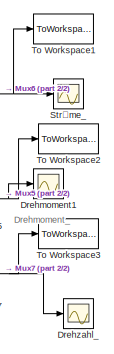
[diagram: root canvas - part 1/2, top right region]
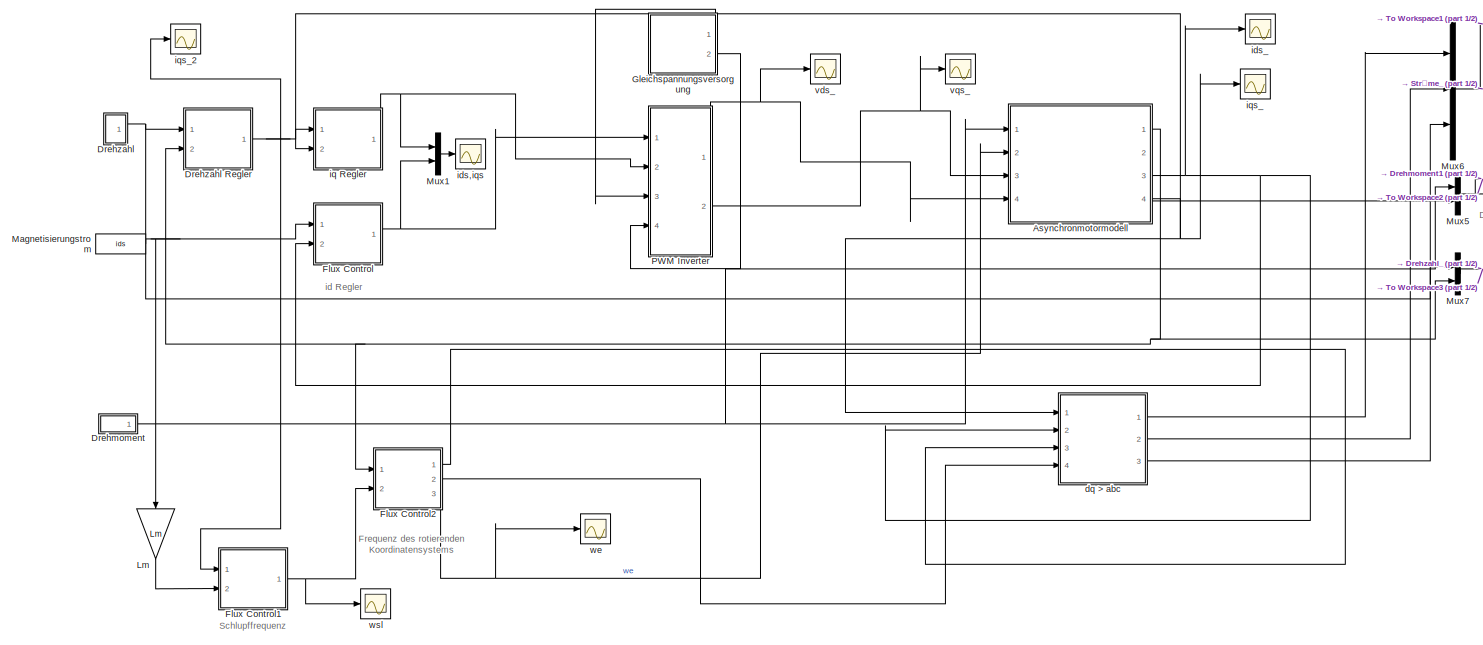
[diagram: root canvas - part 2/2, most of the canvas]
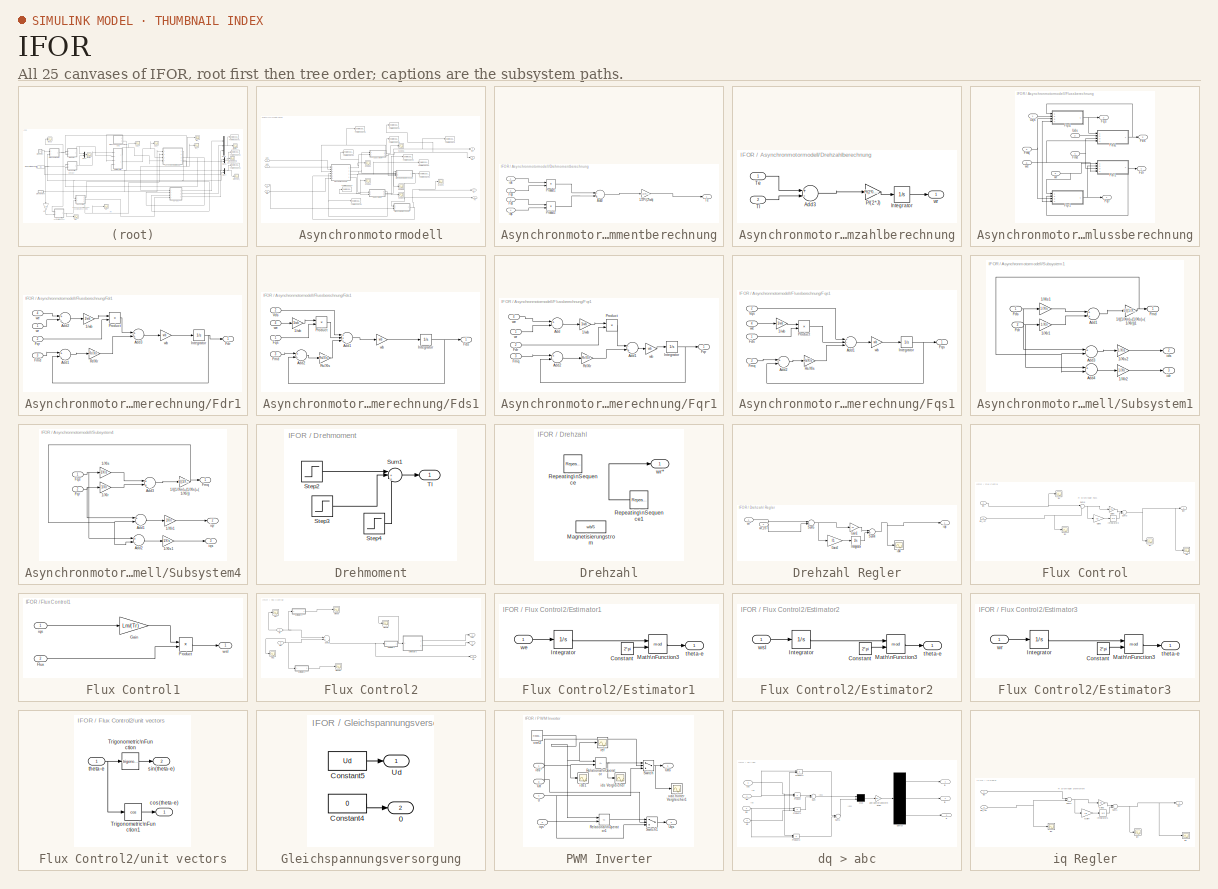
[diagram: thumbnail index - all 25 canvases of the model, root first then tree order]
MODEL IFOR
KIND model
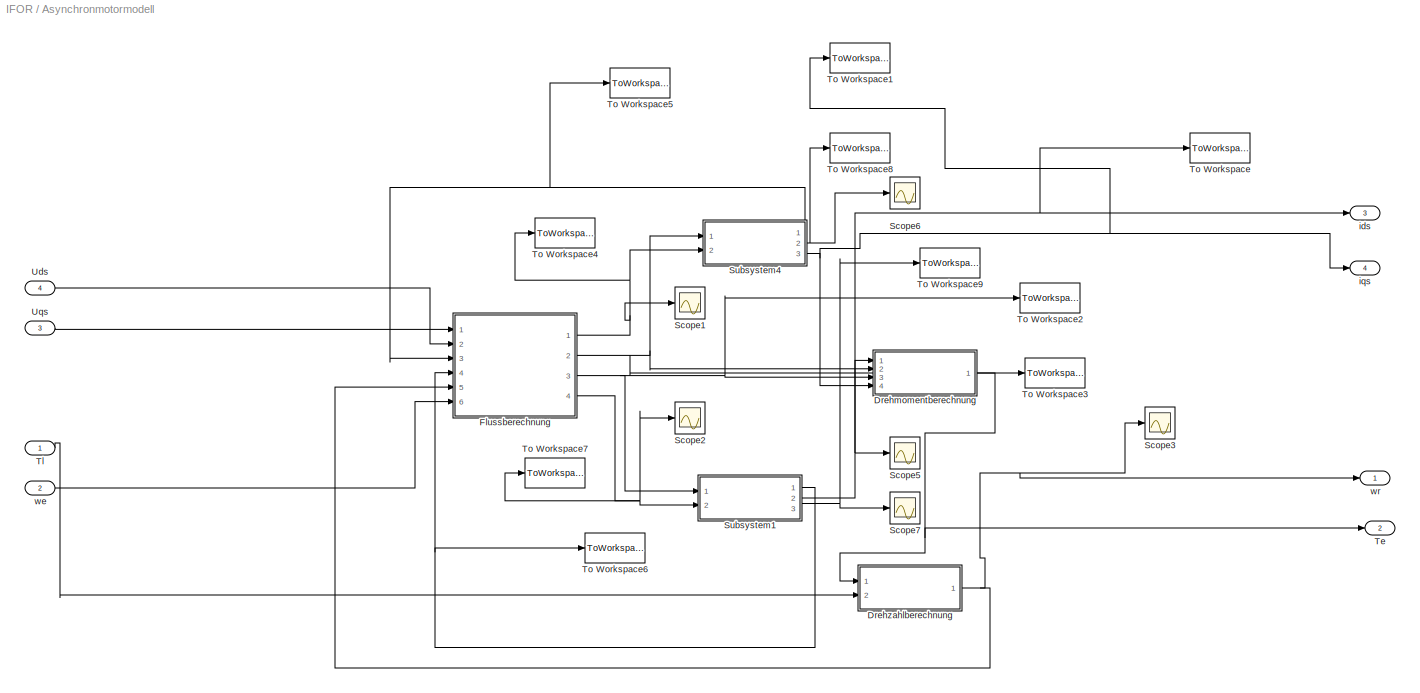
BLOCK [SubSystem] Asynchronmotormodell
  FunctionWithSeparateData = off
  MaskHideContents = off
  MinAlgLoopOccurrences = off
  Opaque = off
  Ports = [4, 4]
  PropExecContextOutsideSubsystem = off
  RTWSystemCode = Auto
  RequestExecContextInheritance = off
BLOCK [SubSystem] Asynchronmotormodell/Drehmomentberechnung
  FunctionWithSeparateData = off
  MaskHideContents = off
  MinAlgLoopOccurrences = off
  Opaque = off
  Ports = [4, 1]
  PropExecContextOutsideSubsystem = off
  RTWSystemCode = Auto
  RequestExecContextInheritance = off
BLOCK [Gain] Asynchronmotormodell/Drehmomentberechnung/1.5*P//(2*wb)
  Gain = 1.5*P/(2*wb)
  OutDataType = sfix(16)
  OutDataTypeMode = Inherit via internal rule
  OutDataTypeStr = Inherit: Inherit via internal rule
  OutScaling = 2^0
  ParamDataTypeStr = Inherit: Inherit via internal rule
  ParameterDataType = sfix(16)
  ParameterDataTypeMode = Inherit via internal rule
  ParameterScaling = 2^0
  SaturateOnIntegerOverflow = off
BLOCK [Sum] Asynchronmotormodell/Drehmomentberechnung/Add3
  InputSameDT = off
  Inputs = -+
  OutDataType = sfix(16)
  OutDataTypeMode = Inherit via internal rule
  OutDataTypeStr = Inherit: Inherit via internal rule
  OutScaling = 2^-10
  Ports = [2, 1]
  SaturateOnIntegerOverflow = off
BLOCK [Inport] Asynchronmotormodell/Drehmomentberechnung/Fds
  IconDisplay = Port number
  OutDataType = sfix(16)
  OutScaling = 2^0
  Port = 3
BLOCK [Inport] Asynchronmotormodell/Drehmomentberechnung/Fqs
  IconDisplay = Port number
  OutDataType = sfix(16)
  OutScaling = 2^0
  Port = 2
BLOCK [Product] Asynchronmotormodell/Drehmomentberechnung/Product1
  InputSameDT = off
  OutDataType = sfix(16)
  OutDataTypeMode = Inherit via internal rule
  OutDataTypeStr = Inherit: Inherit via internal rule
  OutScaling = 2^0
  Ports = [2, 1]
  SaturateOnIntegerOverflow = off
BLOCK [Product] Asynchronmotormodell/Drehmomentberechnung/Product2
  InputSameDT = off
  OutDataType = sfix(16)
  OutDataTypeMode = Inherit via internal rule
  OutDataTypeStr = Inherit: Inherit via internal rule
  OutScaling = 2^0
  Ports = [2, 1]
  SaturateOnIntegerOverflow = off
BLOCK [Outport] Asynchronmotormodell/Drehmomentberechnung/Te
  IconDisplay = Port number
  OutDataType = sfix(16)
  OutScaling = 2^0
BLOCK [Inport] Asynchronmotormodell/Drehmomentberechnung/ids
  IconDisplay = Port number
  OutDataType = sfix(16)
  OutScaling = 2^0
BLOCK [Inport] Asynchronmotormodell/Drehmomentberechnung/iqs
  IconDisplay = Port number
  OutDataType = sfix(16)
  OutScaling = 2^0
  Port = 4
BLOCK [SubSystem] Asynchronmotormodell/Drehzahlberechnung
  FunctionWithSeparateData = off
  MaskHideContents = off
  MinAlgLoopOccurrences = off
  Opaque = off
  Ports = [2, 1]
  PropExecContextOutsideSubsystem = off
  RTWSystemCode = Auto
  RequestExecContextInheritance = off
BLOCK [Sum] Asynchronmotormodell/Drehzahlberechnung/Add3
  InputSameDT = off
  Inputs = +-
  OutDataType = sfix(16)
  OutDataTypeMode = Inherit via internal rule
  OutDataTypeStr = Inherit: Inherit via internal rule
  OutScaling = 2^-10
  Ports = [2, 1]
  SaturateOnIntegerOverflow = off
BLOCK [Integrator] Asynchronmotormodell/Drehzahlberechnung/Integrator
  Ports = [1, 1]
BLOCK [Gain] Asynchronmotormodell/Drehzahlberechnung/P//(2*J)
  Gain = P/(2*0.006)
  OutDataType = sfix(16)
  OutDataTypeMode = Inherit via internal rule
  OutDataTypeStr = Inherit: Inherit via internal rule
  OutScaling = 2^0
  ParamDataTypeStr = Inherit: Inherit via internal rule
  ParameterDataType = sfix(16)
  ParameterDataTypeMode = Inherit via internal rule
  ParameterScaling = 2^0
  SaturateOnIntegerOverflow = off
BLOCK [Inport] Asynchronmotormodell/Drehzahlberechnung/Te
  IconDisplay = Port number
  OutDataType = sfix(16)
  OutScaling = 2^0
BLOCK [Inport] Asynchronmotormodell/Drehzahlberechnung/Tl
  IconDisplay = Port number
  OutDataType = sfix(16)
  OutScaling = 2^0
  Port = 2
BLOCK [Outport] Asynchronmotormodell/Drehzahlberechnung/wr
  IconDisplay = Port number
  OutDataType = sfix(16)
  OutScaling = 2^0
BLOCK [SubSystem] Asynchronmotormodell/Flussberechnung
  FunctionWithSeparateData = off
  MaskHideContents = off
  MinAlgLoopOccurrences = off
  Opaque = off
  Ports = [6, 4]
  PropExecContextOutsideSubsystem = off
  RTWSystemCode = Auto
  RequestExecContextInheritance = off
BLOCK [Outport] Asynchronmotormodell/Flussberechnung/Fdr
  IconDisplay = Port number
  OutDataType = sfix(16)
  OutScaling = 2^0
  Port = 4
BLOCK [SubSystem] Asynchronmotormodell/Flussberechnung/Fdr1
  FunctionWithSeparateData = off
  MaskHideContents = off
  MinAlgLoopOccurrences = off
  Opaque = off
  Ports = [4, 1]
  PropExecContextOutsideSubsystem = off
  RTWSystemCode = Auto
  RequestExecContextInheritance = off
BLOCK [Gain] Asynchronmotormodell/Flussberechnung/Fdr1/1//wb
  Gain = 1/wb
  OutDataType = sfix(16)
  OutDataTypeMode = Inherit via internal rule
  OutDataTypeStr = Inherit: Inherit via internal rule
  OutScaling = 2^0
  ParamDataTypeStr = Inherit: Inherit via internal rule
  ParameterDataType = sfix(16)
  ParameterDataTypeMode = Inherit via internal rule
  ParameterScaling = 2^0
  SaturateOnIntegerOverflow = off
BLOCK [Sum] Asynchronmotormodell/Flussberechnung/Fdr1/Add1
  InputSameDT = off
  Inputs = +-
  OutDataType = sfix(16)
  OutDataTypeMode = Inherit via internal rule
  OutDataTypeStr = Inherit: Inherit via internal rule
  OutScaling = 2^-10
  Ports = [2, 1]
  SaturateOnIntegerOverflow = off
BLOCK [Sum] Asynchronmotormodell/Flussberechnung/Fdr1/Add2
  InputSameDT = off
  Inputs = +-
  OutDataType = sfix(16)
  OutDataTypeMode = Inherit via internal rule
  OutDataTypeStr = Inherit: Inherit via internal rule
  OutScaling = 2^-10
  Ports = [2, 1]
  SaturateOnIntegerOverflow = off
BLOCK [Sum] Asynchronmotormodell/Flussberechnung/Fdr1/Add3
  InputSameDT = off
  OutDataType = sfix(16)
  OutDataTypeMode = Inherit via internal rule
  OutDataTypeStr = Inherit: Inherit via internal rule
  OutScaling = 2^-10
  Ports = [2, 1]
  SaturateOnIntegerOverflow = off
BLOCK [Outport] Asynchronmotormodell/Flussberechnung/Fdr1/Fdr
  IconDisplay = Port number
  OutDataType = sfix(16)
  OutScaling = 2^0
BLOCK [Inport] Asynchronmotormodell/Flussberechnung/Fdr1/Fmd
  IconDisplay = Port number
  OutDataType = sfix(16)
  OutScaling = 2^0
  Port = 3
BLOCK [Inport] Asynchronmotormodell/Flussberechnung/Fdr1/Fqr
  IconDisplay = Port number
  OutDataType = sfix(16)
  OutScaling = 2^0
  Port = 2
BLOCK [Integrator] Asynchronmotormodell/Flussberechnung/Fdr1/Integrator
  Ports = [1, 1]
BLOCK [Product] Asynchronmotormodell/Flussberechnung/Fdr1/Product
  InputSameDT = off
  OutDataType = sfix(16)
  OutDataTypeMode = Inherit via internal rule
  OutDataTypeStr = Inherit: Inherit via internal rule
  OutScaling = 2^0
  Ports = [2, 1]
  SaturateOnIntegerOverflow = off
BLOCK [Gain] Asynchronmotormodell/Flussberechnung/Fdr1/Rr//Xlr
  Gain = Rr/Xlr
  OutDataType = sfix(16)
  OutDataTypeMode = Inherit via internal rule
  OutDataTypeStr = Inherit: Inherit via internal rule
  OutScaling = 2^0
  ParamDataTypeStr = Inherit: Inherit via internal rule
  ParameterDataType = sfix(16)
  ParameterDataTypeMode = Inherit via internal rule
  ParameterScaling = 2^0
  SaturateOnIntegerOverflow = off
BLOCK [Gain] Asynchronmotormodell/Flussberechnung/Fdr1/wb
  Gain = wb
  OutDataType = sfix(16)
  OutDataTypeMode = Inherit via internal rule
  OutDataTypeStr = Inherit: Inherit via internal rule
  OutScaling = 2^0
  ParamDataTypeStr = Inherit: Inherit via internal rule
  ParameterDataType = sfix(16)
  ParameterDataTypeMode = Inherit via internal rule
  ParameterScaling = 2^0
  SaturateOnIntegerOverflow = off
BLOCK [Inport] Asynchronmotormodell/Flussberechnung/Fdr1/we
  IconDisplay = Port number
  OutDataType = sfix(16)
  OutScaling = 2^0
  Port = 4
BLOCK [Inport] Asynchronmotormodell/Flussberechnung/Fdr1/wr
  IconDisplay = Port number
  OutDataType = sfix(16)
  OutScaling = 2^0
BLOCK [Outport] Asynchronmotormodell/Flussberechnung/Fds
  IconDisplay = Port number
  OutDataType = sfix(16)
  OutScaling = 2^0
  Port = 3
BLOCK [SubSystem] Asynchronmotormodell/Flussberechnung/Fds1
  FunctionWithSeparateData = off
  MaskHideContents = off
  MinAlgLoopOccurrences = off
  Opaque = off
  Ports = [4, 1]
  PropExecContextOutsideSubsystem = off
  RTWSystemCode = Auto
  RequestExecContextInheritance = off
BLOCK [Gain] Asynchronmotormodell/Flussberechnung/Fds1/1//wb
  Gain = 1/wb
  OutDataType = sfix(16)
  OutDataTypeMode = Inherit via internal rule
  OutDataTypeStr = Inherit: Inherit via internal rule
  OutScaling = 2^0
  ParamDataTypeStr = Inherit: Inherit via internal rule
  ParameterDataType = sfix(16)
  ParameterDataTypeMode = Inherit via internal rule
  ParameterScaling = 2^0
  SaturateOnIntegerOverflow = off
BLOCK [Sum] Asynchronmotormodell/Flussberechnung/Fds1/Add1
  InputSameDT = off
  Inputs = +++
  OutDataType = sfix(16)
  OutDataTypeMode = Inherit via internal rule
  OutDataTypeStr = Inherit: Inherit via internal rule
  OutScaling = 2^-10
  Ports = [3, 1]
  SaturateOnIntegerOverflow = off
BLOCK [Sum] Asynchronmotormodell/Flussberechnung/Fds1/Add2
  InputSameDT = off
  Inputs = +-
  OutDataType = sfix(16)
  OutDataTypeMode = Inherit via internal rule
  OutDataTypeStr = Inherit: Inherit via internal rule
  OutScaling = 2^-10
  Ports = [2, 1]
  SaturateOnIntegerOverflow = off
BLOCK [Outport] Asynchronmotormodell/Flussberechnung/Fds1/Fds
  IconDisplay = Port number
  OutDataType = sfix(16)
  OutScaling = 2^0
BLOCK [Inport] Asynchronmotormodell/Flussberechnung/Fds1/Fmd
  IconDisplay = Port number
  OutDataType = sfix(16)
  OutScaling = 2^0
  Port = 3
BLOCK [Inport] Asynchronmotormodell/Flussberechnung/Fds1/Fqs
  IconDisplay = Port number
  OutDataType = sfix(16)
  OutScaling = 2^0
BLOCK [Integrator] Asynchronmotormodell/Flussberechnung/Fds1/Integrator
  Ports = [1, 1]
BLOCK [Product] Asynchronmotormodell/Flussberechnung/Fds1/Product
  InputSameDT = off
  OutDataType = sfix(16)
  OutDataTypeMode = Inherit via internal rule
  OutDataTypeStr = Inherit: Inherit via internal rule
  OutScaling = 2^0
  Ports = [2, 1]
  SaturateOnIntegerOverflow = off
BLOCK [Gain] Asynchronmotormodell/Flussberechnung/Fds1/Rs//Xls
  Gain = Rs/Xls
  OutDataType = sfix(16)
  OutDataTypeMode = Inherit via internal rule
  OutDataTypeStr = Inherit: Inherit via internal rule
  OutScaling = 2^0
  ParamDataTypeStr = Inherit: Inherit via internal rule
  ParameterDataType = sfix(16)
  ParameterDataTypeMode = Inherit via internal rule
  ParameterScaling = 2^0
  SaturateOnIntegerOverflow = off
BLOCK [Inport] Asynchronmotormodell/Flussberechnung/Fds1/Vds
  IconDisplay = Port number
  OutDataType = sfix(16)
  OutScaling = 2^0
  Port = 2
BLOCK [Gain] Asynchronmotormodell/Flussberechnung/Fds1/wb
  Gain = wb
  OutDataType = sfix(16)
  OutDataTypeMode = Inherit via internal rule
  OutDataTypeStr = Inherit: Inherit via internal rule
  OutScaling = 2^0
  ParamDataTypeStr = Inherit: Inherit via internal rule
  ParameterDataType = sfix(16)
  ParameterDataTypeMode = Inherit via internal rule
  ParameterScaling = 2^0
  SaturateOnIntegerOverflow = off
BLOCK [Inport] Asynchronmotormodell/Flussberechnung/Fds1/we
  IconDisplay = Port number
  OutDataType = sfix(16)
  OutScaling = 2^0
  Port = 4
BLOCK [Inport] Asynchronmotormodell/Flussberechnung/Fmd
  IconDisplay = Port number
  OutDataType = sfix(16)
  OutScaling = 2^0
  Port = 4
BLOCK [Inport] Asynchronmotormodell/Flussberechnung/Fmq
  IconDisplay = Port number
  OutDataType = sfix(16)
  OutScaling = 2^0
  Port = 3
BLOCK [Outport] Asynchronmotormodell/Flussberechnung/Fqr
  IconDisplay = Port number
  OutDataType = sfix(16)
  OutScaling = 2^0
BLOCK [SubSystem] Asynchronmotormodell/Flussberechnung/Fqr1
  FunctionWithSeparateData = off
  MaskHideContents = off
  MinAlgLoopOccurrences = off
  Opaque = off
  Ports = [4, 1]
  PropExecContextOutsideSubsystem = off
  RTWSystemCode = Auto
  RequestExecContextInheritance = off
BLOCK [Gain] Asynchronmotormodell/Flussberechnung/Fqr1/1//wb
  Gain = 1/wb
  OutDataType = sfix(16)
  OutDataTypeMode = Inherit via internal rule
  OutDataTypeStr = Inherit: Inherit via internal rule
  OutScaling = 2^0
  ParamDataTypeStr = Inherit: Inherit via internal rule
  ParameterDataType = sfix(16)
  ParameterDataTypeMode = Inherit via internal rule
  ParameterScaling = 2^0
  SaturateOnIntegerOverflow = off
BLOCK [Sum] Asynchronmotormodell/Flussberechnung/Fqr1/Add
  InputSameDT = off
  Inputs = +-
  OutDataType = sfix(16)
  OutDataTypeMode = Inherit via internal rule
  OutDataTypeStr = Inherit: Inherit via internal rule
  OutScaling = 2^-10
  Ports = [2, 1]
  SaturateOnIntegerOverflow = off
BLOCK [Sum] Asynchronmotormodell/Flussberechnung/Fqr1/Add1
  InputSameDT = off
  Inputs = -+
  OutDataType = sfix(16)
  OutDataTypeMode = Inherit via internal rule
  OutDataTypeStr = Inherit: Inherit via internal rule
  OutScaling = 2^-10
  Ports = [2, 1]
  SaturateOnIntegerOverflow = off
BLOCK [Sum] Asynchronmotormodell/Flussberechnung/Fqr1/Add2
  InputSameDT = off
  Inputs = +-
  OutDataType = sfix(16)
  OutDataTypeMode = Inherit via internal rule
  OutDataTypeStr = Inherit: Inherit via internal rule
  OutScaling = 2^-10
  Ports = [2, 1]
  SaturateOnIntegerOverflow = off
BLOCK [Inport] Asynchronmotormodell/Flussberechnung/Fqr1/Fdr
  IconDisplay = Port number
  OutDataType = sfix(16)
  OutScaling = 2^0
  Port = 2
BLOCK [Inport] Asynchronmotormodell/Flussberechnung/Fqr1/Fmq
  IconDisplay = Port number
  OutDataType = sfix(16)
  OutScaling = 2^0
  Port = 3
BLOCK [Outport] Asynchronmotormodell/Flussberechnung/Fqr1/Fqr
  IconDisplay = Port number
  OutDataType = sfix(16)
  OutScaling = 2^0
BLOCK [Integrator] Asynchronmotormodell/Flussberechnung/Fqr1/Integrator
  Ports = [1, 1]
BLOCK [Product] Asynchronmotormodell/Flussberechnung/Fqr1/Product
  InputSameDT = off
  OutDataType = sfix(16)
  OutDataTypeMode = Inherit via internal rule
  OutDataTypeStr = Inherit: Inherit via internal rule
  OutScaling = 2^0
  Ports = [2, 1]
  SaturateOnIntegerOverflow = off
BLOCK [Gain] Asynchronmotormodell/Flussberechnung/Fqr1/Rr//Xlr
  Gain = Rr/Xlr
  OutDataType = sfix(16)
  OutDataTypeMode = Inherit via internal rule
  OutDataTypeStr = Inherit: Inherit via internal rule
  OutScaling = 2^0
  ParamDataTypeStr = Inherit: Inherit via internal rule
  ParameterDataType = sfix(16)
  ParameterDataTypeMode = Inherit via internal rule
  ParameterScaling = 2^0
  SaturateOnIntegerOverflow = off
BLOCK [Gain] Asynchronmotormodell/Flussberechnung/Fqr1/wb
  Gain = wb
  OutDataType = sfix(16)
  OutDataTypeMode = Inherit via internal rule
  OutDataTypeStr = Inherit: Inherit via internal rule
  OutScaling = 2^0
  ParamDataTypeStr = Inherit: Inherit via internal rule
  ParameterDataType = sfix(16)
  ParameterDataTypeMode = Inherit via internal rule
  ParameterScaling = 2^0
  SaturateOnIntegerOverflow = off
BLOCK [Inport] Asynchronmotormodell/Flussberechnung/Fqr1/we
  IconDisplay = Port number
  OutDataType = sfix(16)
  OutScaling = 2^0
  Port = 4
BLOCK [Inport] Asynchronmotormodell/Flussberechnung/Fqr1/wr
  IconDisplay = Port number
  OutDataType = sfix(16)
  OutScaling = 2^0
BLOCK [Outport] Asynchronmotormodell/Flussberechnung/Fqs
  IconDisplay = Port number
  OutDataType = sfix(16)
  OutScaling = 2^0
  Port = 2
BLOCK [SubSystem] Asynchronmotormodell/Flussberechnung/Fqs1
  FunctionWithSeparateData = off
  MaskHideContents = off
  MinAlgLoopOccurrences = off
  Opaque = off
  Ports = [4, 1]
  PropExecContextOutsideSubsystem = off
  RTWSystemCode = Auto
  RequestExecContextInheritance = off
BLOCK [Gain] Asynchronmotormodell/Flussberechnung/Fqs1/1//wb
  Gain = 1/wb
  OutDataType = sfix(16)
  OutDataTypeMode = Inherit via internal rule
  OutDataTypeStr = Inherit: Inherit via internal rule
  OutScaling = 2^0
  ParamDataTypeStr = Inherit: Inherit via internal rule
  ParameterDataType = sfix(16)
  ParameterDataTypeMode = Inherit via internal rule
  ParameterScaling = 2^0
  SaturateOnIntegerOverflow = off
BLOCK [Sum] Asynchronmotormodell/Flussberechnung/Fqs1/Add1
  InputSameDT = off
  Inputs = +-+
  OutDataType = sfix(16)
  OutDataTypeMode = Inherit via internal rule
  OutDataTypeStr = Inherit: Inherit via internal rule
  OutScaling = 2^-10
  Ports = [3, 1]
  SaturateOnIntegerOverflow = off
BLOCK [Sum] Asynchronmotormodell/Flussberechnung/Fqs1/Add2
  InputSameDT = off
  Inputs = +-
  OutDataType = sfix(16)
  OutDataTypeMode = Inherit via internal rule
  OutDataTypeStr = Inherit: Inherit via internal rule
  OutScaling = 2^-10
  Ports = [2, 1]
  SaturateOnIntegerOverflow = off
BLOCK [Inport] Asynchronmotormodell/Flussberechnung/Fqs1/Fds
  IconDisplay = Port number
  OutDataType = sfix(16)
  OutScaling = 2^0
BLOCK [Inport] Asynchronmotormodell/Flussberechnung/Fqs1/Fmq
  IconDisplay = Port number
  OutDataType = sfix(16)
  OutScaling = 2^0
  Port = 3
BLOCK [Outport] Asynchronmotormodell/Flussberechnung/Fqs1/Fqs
  IconDisplay = Port number
  OutDataType = sfix(16)
  OutScaling = 2^0
BLOCK [Integrator] Asynchronmotormodell/Flussberechnung/Fqs1/Integrator
  Ports = [1, 1]
BLOCK [Product] Asynchronmotormodell/Flussberechnung/Fqs1/Product
  InputSameDT = off
  OutDataType = sfix(16)
  OutDataTypeMode = Inherit via internal rule
  OutDataTypeStr = Inherit: Inherit via internal rule
  OutScaling = 2^0
  Ports = [2, 1]
  SaturateOnIntegerOverflow = off
BLOCK [Gain] Asynchronmotormodell/Flussberechnung/Fqs1/Rs//Xls
  Gain = Rs/Xls
  OutDataType = sfix(16)
  OutDataTypeMode = Inherit via internal rule
  OutDataTypeStr = Inherit: Inherit via internal rule
  OutScaling = 2^0
  ParamDataTypeStr = Inherit: Inherit via internal rule
  ParameterDataType = sfix(16)
  ParameterDataTypeMode = Inherit via internal rule
  ParameterScaling = 2^0
  SaturateOnIntegerOverflow = off
BLOCK [Inport] Asynchronmotormodell/Flussberechnung/Fqs1/Vqs
  IconDisplay = Port number
  OutDataType = sfix(16)
  OutScaling = 2^0
  Port = 2
BLOCK [Gain] Asynchronmotormodell/Flussberechnung/Fqs1/wb
  Gain = wb
  OutDataType = sfix(16)
  OutDataTypeMode = Inherit via internal rule
  OutDataTypeStr = Inherit: Inherit via internal rule
  OutScaling = 2^0
  ParamDataTypeStr = Inherit: Inherit via internal rule
  ParameterDataType = sfix(16)
  ParameterDataTypeMode = Inherit via internal rule
  ParameterScaling = 2^0
  SaturateOnIntegerOverflow = off
BLOCK [Inport] Asynchronmotormodell/Flussberechnung/Fqs1/we
  IconDisplay = Port number
  OutDataType = sfix(16)
  OutScaling = 2^0
  Port = 4
BLOCK [Inport] Asynchronmotormodell/Flussberechnung/Uds
  IconDisplay = Port number
  OutDataType = sfix(16)
  OutScaling = 2^0
  Port = 2
BLOCK [Inport] Asynchronmotormodell/Flussberechnung/Uqs
  IconDisplay = Port number
  OutDataType = sfix(16)
  OutScaling = 2^0
BLOCK [Inport] Asynchronmotormodell/Flussberechnung/we
  IconDisplay = Port number
  OutDataType = sfix(16)
  OutScaling = 2^0
  Port = 6
BLOCK [Inport] Asynchronmotormodell/Flussberechnung/wr
  IconDisplay = Port number
  OutDataType = sfix(16)
  OutScaling = 2^0
  Port = 5
BLOCK [Scope] Asynchronmotormodell/Scope1
  DataFormat = StructureWithTime
  Floating = off
  NumInputPorts = 1
  Ports = [1]
  SampleTime = 0
  SaveName = ScopeData29
  TimeRange = 0.3
  YMax = -43.75
  YMin = -47.25
  ZoomMode = yonly
BLOCK [Scope] Asynchronmotormodell/Scope2
  DataFormat = StructureWithTime
  Floating = off
  NumInputPorts = 1
  Ports = [1]
  SampleTime = 0
  SaveName = ScopeData30
  TimeRange = 0.3
  YMax = 393.5
  YMin = 386.5
  ZoomMode = yonly
BLOCK [Scope] Asynchronmotormodell/Scope3
  DataFormat = StructureWithTime
  Floating = off
  NumInputPorts = 1
  Ports = [1]
  SampleTime = 0
  SaveName = Drehzahl1
  SaveToWorkspace = on
  TimeRange = 0.5
  YMax = 240
  YMin = 30
BLOCK [Scope] Asynchronmotormodell/Scope5
  DataFormat = StructureWithTime
  Floating = off
  NumInputPorts = 1
  Ports = [1]
  SampleTime = 0
  SaveName = ScopeData13
  TimeRange = 0.5
  YMax = 68.1
  YMin = 66.3
BLOCK [Scope] Asynchronmotormodell/Scope6
  DataFormat = StructureWithTime
  Floating = off
  NumInputPorts = 1
  Ports = [1]
  SampleTime = 0
  SaveName = ScopeData14
  TimeRange = 0.3
  YMax = 7.5
  YMin = -25
  ZoomMode = yonly
BLOCK [Scope] Asynchronmotormodell/Scope7
  DataFormat = StructureWithTime
  Floating = off
  NumInputPorts = 1
  Ports = [1]
  SampleTime = 0
  SaveName = ScopeData15
  TimeRange = 1
  YMax = 1
  YMin = -1
BLOCK [SubSystem] Asynchronmotormodell/Subsystem1
  FunctionWithSeparateData = off
  MaskHideContents = off
  MinAlgLoopOccurrences = off
  Opaque = off
  Ports = [2, 3]
  PropExecContextOutsideSubsystem = off
  RTWSystemCode = Auto
  RequestExecContextInheritance = off
BLOCK [Gain] Asynchronmotormodell/Subsystem1/1//((1//Xm)+(1//Xls)+(1//Xlr))1
  Gain = 1/((1/Xm)+(1/Xls)+(1/Xlr))
  OutDataType = sfix(16)
  OutDataTypeMode = Inherit via internal rule
  OutDataTypeStr = Inherit: Inherit via internal rule
  OutScaling = 2^0
  ParamDataTypeStr = Inherit: Inherit via internal rule
  ParameterDataType = sfix(16)
  ParameterDataTypeMode = Inherit via internal rule
  ParameterScaling = 2^0
  SaturateOnIntegerOverflow = off
BLOCK [Gain] Asynchronmotormodell/Subsystem1/1//Xlr1
  Gain = 1/Xlr
  OutDataType = sfix(16)
  OutDataTypeMode = Inherit via internal rule
  OutDataTypeStr = Inherit: Inherit via internal rule
  OutScaling = 2^0
  ParamDataTypeStr = Inherit: Inherit via internal rule
  ParameterDataType = sfix(16)
  ParameterDataTypeMode = Inherit via internal rule
  ParameterScaling = 2^0
  SaturateOnIntegerOverflow = off
BLOCK [Gain] Asynchronmotormodell/Subsystem1/1//Xlr2
  Gain = 1/Xlr
  OutDataType = sfix(16)
  OutDataTypeMode = Inherit via internal rule
  OutDataTypeStr = Inherit: Inherit via internal rule
  OutScaling = 2^0
  ParamDataTypeStr = Inherit: Inherit via internal rule
  ParameterDataType = sfix(16)
  ParameterDataTypeMode = Inherit via internal rule
  ParameterScaling = 2^0
  SaturateOnIntegerOverflow = off
BLOCK [Gain] Asynchronmotormodell/Subsystem1/1//Xls1
  Gain = 1/Xls
  OutDataType = sfix(16)
  OutDataTypeMode = Inherit via internal rule
  OutDataTypeStr = Inherit: Inherit via internal rule
  OutScaling = 2^0
  ParamDataTypeStr = Inherit: Inherit via internal rule
  ParameterDataType = sfix(16)
  ParameterDataTypeMode = Inherit via internal rule
  ParameterScaling = 2^0
  SaturateOnIntegerOverflow = off
BLOCK [Gain] Asynchronmotormodell/Subsystem1/1//Xls2
  Gain = 1/Xls
  OutDataType = sfix(16)
  OutDataTypeMode = Inherit via internal rule
  OutDataTypeStr = Inherit: Inherit via internal rule
  OutScaling = 2^0
  ParamDataTypeStr = Inherit: Inherit via internal rule
  ParameterDataType = sfix(16)
  ParameterDataTypeMode = Inherit via internal rule
  ParameterScaling = 2^0
  SaturateOnIntegerOverflow = off
BLOCK [Sum] Asynchronmotormodell/Subsystem1/Add1
  InputSameDT = off
  OutDataType = sfix(16)
  OutDataTypeMode = Inherit via internal rule
  OutDataTypeStr = Inherit: Inherit via internal rule
  OutScaling = 2^-10
  Ports = [2, 1]
  SaturateOnIntegerOverflow = off
BLOCK [Sum] Asynchronmotormodell/Subsystem1/Add3
  InputSameDT = off
  Inputs = +-
  OutDataType = sfix(16)
  OutDataTypeMode = Inherit via internal rule
  OutDataTypeStr = Inherit: Inherit via internal rule
  OutScaling = 2^-10
  Ports = [2, 1]
  SaturateOnIntegerOverflow = off
BLOCK [Sum] Asynchronmotormodell/Subsystem1/Add4
  InputSameDT = off
  Inputs = +-
  OutDataType = sfix(16)
  OutDataTypeMode = Inherit via internal rule
  OutDataTypeStr = Inherit: Inherit via internal rule
  OutScaling = 2^-10
  Ports = [2, 1]
  SaturateOnIntegerOverflow = off
BLOCK [Inport] Asynchronmotormodell/Subsystem1/Fdr
  IconDisplay = Port number
  OutDataType = sfix(16)
  OutScaling = 2^0
  Port = 2
BLOCK [Inport] Asynchronmotormodell/Subsystem1/Fds
  IconDisplay = Port number
  OutDataType = sfix(16)
  OutScaling = 2^0
BLOCK [Outport] Asynchronmotormodell/Subsystem1/Fmd
  IconDisplay = Port number
  OutDataType = sfix(16)
  OutScaling = 2^0
BLOCK [Outport] Asynchronmotormodell/Subsystem1/idr
  IconDisplay = Port number
  OutDataType = sfix(16)
  OutScaling = 2^0
  Port = 3
BLOCK [Outport] Asynchronmotormodell/Subsystem1/ids
  IconDisplay = Port number
  OutDataType = sfix(16)
  OutScaling = 2^0
  Port = 2
BLOCK [SubSystem] Asynchronmotormodell/Subsystem4
  FunctionWithSeparateData = off
  MaskHideContents = off
  MinAlgLoopOccurrences = off
  Opaque = off
  Ports = [2, 3]
  PropExecContextOutsideSubsystem = off
  RTWSystemCode = Auto
  RequestExecContextInheritance = off
BLOCK [Gain] Asynchronmotormodell/Subsystem4/1//((1//Xm)+(1//Xls)+(1//Xlr))
  Gain = 1/((1/Xm)+(1/Xls)+(1/Xlr))
  OutDataType = sfix(16)
  OutDataTypeMode = Inherit via internal rule
  OutDataTypeStr = Inherit: Inherit via internal rule
  OutScaling = 2^0
  ParamDataTypeStr = Inherit: Inherit via internal rule
  ParameterDataType = sfix(16)
  ParameterDataTypeMode = Inherit via internal rule
  ParameterScaling = 2^0
  SaturateOnIntegerOverflow = off
BLOCK [Gain] Asynchronmotormodell/Subsystem4/1//Xlr
  Gain = 1/Xlr
  OutDataType = sfix(16)
  OutDataTypeMode = Inherit via internal rule
  OutDataTypeStr = Inherit: Inherit via internal rule
  OutScaling = 2^0
  ParamDataTypeStr = Inherit: Inherit via internal rule
  ParameterDataType = sfix(16)
  ParameterDataTypeMode = Inherit via internal rule
  ParameterScaling = 2^0
  SaturateOnIntegerOverflow = off
BLOCK [Gain] Asynchronmotormodell/Subsystem4/1//Xlr1
  Gain = 1/Xlr
  OutDataType = sfix(16)
  OutDataTypeMode = Inherit via internal rule
  OutDataTypeStr = Inherit: Inherit via internal rule
  OutScaling = 2^0
  ParamDataTypeStr = Inherit: Inherit via internal rule
  ParameterDataType = sfix(16)
  ParameterDataTypeMode = Inherit via internal rule
  ParameterScaling = 2^0
  SaturateOnIntegerOverflow = off
BLOCK [Gain] Asynchronmotormodell/Subsystem4/1//Xls
  Gain = 1/Xls
  OutDataType = sfix(16)
  OutDataTypeMode = Inherit via internal rule
  OutDataTypeStr = Inherit: Inherit via internal rule
  OutScaling = 2^0
  ParamDataTypeStr = Inherit: Inherit via internal rule
  ParameterDataType = sfix(16)
  ParameterDataTypeMode = Inherit via internal rule
  ParameterScaling = 2^0
  SaturateOnIntegerOverflow = off
BLOCK [Gain] Asynchronmotormodell/Subsystem4/1//Xls1
  Gain = 1/Xls
  OutDataType = sfix(16)
  OutDataTypeMode = Inherit via internal rule
  OutDataTypeStr = Inherit: Inherit via internal rule
  OutScaling = 2^0
  ParamDataTypeStr = Inherit: Inherit via internal rule
  ParameterDataType = sfix(16)
  ParameterDataTypeMode = Inherit via internal rule
  ParameterScaling = 2^0
  SaturateOnIntegerOverflow = off
BLOCK [Sum] Asynchronmotormodell/Subsystem4/Add1
  InputSameDT = off
  Inputs = +-
  OutDataType = sfix(16)
  OutDataTypeMode = Inherit via internal rule
  OutDataTypeStr = Inherit: Inherit via internal rule
  OutScaling = 2^-10
  Ports = [2, 1]
  SaturateOnIntegerOverflow = off
BLOCK [Sum] Asynchronmotormodell/Subsystem4/Add2
  InputSameDT = off
  Inputs = +-
  OutDataType = sfix(16)
  OutDataTypeMode = Inherit via internal rule
  OutDataTypeStr = Inherit: Inherit via internal rule
  OutScaling = 2^-10
  Ports = [2, 1]
  SaturateOnIntegerOverflow = off
BLOCK [Sum] Asynchronmotormodell/Subsystem4/Add3
  InputSameDT = off
  OutDataType = sfix(16)
  OutDataTypeMode = Inherit via internal rule
  OutDataTypeStr = Inherit: Inherit via internal rule
  OutScaling = 2^-10
  Ports = [2, 1]
  SaturateOnIntegerOverflow = off
BLOCK [Outport] Asynchronmotormodell/Subsystem4/Fmq
  IconDisplay = Port number
  OutDataType = sfix(16)
  OutScaling = 2^0
BLOCK [Inport] Asynchronmotormodell/Subsystem4/Fqr
  IconDisplay = Port number
  OutDataType = sfix(16)
  OutScaling = 2^0
  Port = 2
BLOCK [Inport] Asynchronmotormodell/Subsystem4/Fqs
  IconDisplay = Port number
  OutDataType = sfix(16)
  OutScaling = 2^0
BLOCK [Outport] Asynchronmotormodell/Subsystem4/iqr
  IconDisplay = Port number
  OutDataType = sfix(16)
  OutScaling = 2^0
  Port = 2
BLOCK [Outport] Asynchronmotormodell/Subsystem4/iqs
  IconDisplay = Port number
  OutDataType = sfix(16)
  OutScaling = 2^0
  Port = 3
BLOCK [Outport] Asynchronmotormodell/Te
  IconDisplay = Port number
  OutDataType = sfix(16)
  OutScaling = 2^0
  Port = 2
BLOCK [Inport] Asynchronmotormodell/Tl
  IconDisplay = Port number
  OutDataType = sfix(16)
  OutScaling = 2^0
BLOCK [ToWorkspace] Asynchronmotormodell/To Workspace
  MaxDataPoints = inf
  SampleTime = -1
  SaveFormat = Structure
  VariableName = simout
BLOCK [ToWorkspace] Asynchronmotormodell/To Workspace1
  MaxDataPoints = inf
  SampleTime = -1
  SaveFormat = Structure
  VariableName = simout1
BLOCK [ToWorkspace] Asynchronmotormodell/To Workspace2
  MaxDataPoints = inf
  SampleTime = -1
  SaveFormat = Structure
  VariableName = simout2
BLOCK [ToWorkspace] Asynchronmotormodell/To Workspace3
  MaxDataPoints = inf
  SampleTime = -1
  SaveFormat = Structure
  VariableName = simout3
BLOCK [ToWorkspace] Asynchronmotormodell/To Workspace4
  MaxDataPoints = inf
  SampleTime = -1
  SaveFormat = Structure
  VariableName = simout4
BLOCK [ToWorkspace] Asynchronmotormodell/To Workspace5
  MaxDataPoints = inf
  SampleTime = -1
  SaveFormat = Structure
  VariableName = simout5
BLOCK [ToWorkspace] Asynchronmotormodell/To Workspace6
  MaxDataPoints = inf
  SampleTime = -1
  SaveFormat = Structure
  VariableName = simout6
BLOCK [ToWorkspace] Asynchronmotormodell/To Workspace7
  MaxDataPoints = inf
  SampleTime = -1
  SaveFormat = Structure
  VariableName = simout10
BLOCK [ToWorkspace] Asynchronmotormodell/To Workspace8
  MaxDataPoints = inf
  SampleTime = -1
  SaveFormat = Structure
  VariableName = simout11
BLOCK [ToWorkspace] Asynchronmotormodell/To Workspace9
  MaxDataPoints = inf
  SampleTime = -1
  SaveFormat = Structure
  VariableName = simout12
BLOCK [Inport] Asynchronmotormodell/Uds
  IconDisplay = Port number
  OutDataType = sfix(16)
  OutScaling = 2^0
  Port = 4
BLOCK [Inport] Asynchronmotormodell/Uqs
  IconDisplay = Port number
  OutDataType = sfix(16)
  OutScaling = 2^0
  Port = 3
BLOCK [Outport] Asynchronmotormodell/ids
  IconDisplay = Port number
  OutDataType = sfix(16)
  OutScaling = 2^0
  Port = 3
BLOCK [Outport] Asynchronmotormodell/iqs
  IconDisplay = Port number
  OutDataType = sfix(16)
  OutScaling = 2^0
  Port = 4
BLOCK [Inport] Asynchronmotormodell/we
  IconDisplay = Port number
  OutDataType = sfix(16)
  OutScaling = 2^0
  Port = 2
BLOCK [Outport] Asynchronmotormodell/wr
  IconDisplay = Port number
  OutDataType = sfix(16)
  OutScaling = 2^0
BLOCK [SubSystem] Drehmoment
  FunctionWithSeparateData = off
  MaskHideContents = off
  MinAlgLoopOccurrences = off
  Opaque = off
  Ports = [0, 1]
  PropExecContextOutsideSubsystem = off
  RTWSystemCode = Auto
  RequestExecContextInheritance = off
BLOCK [Step] Drehmoment/Step2
  After = 3
  SampleTime = 0
  Time = .2
BLOCK [Step] Drehmoment/Step3
  After = 0
  SampleTime = 0
  Time = 0.05
BLOCK [Step] Drehmoment/Step4
  After = 0
  SampleTime = 0
  Time = 30
BLOCK [Sum] Drehmoment/Sum1
  IconShape = round
  Inputs = |+++
  OutDataType = sfix(16)
  OutScaling = 2^0
  Ports = [3, 1]
BLOCK [Outport] Drehmoment/Tl
  IconDisplay = Port number
  OutDataType = sfix(16)
  OutScaling = 2^0
BLOCK [Scope] Drehmoment1
  DataFormat = Array
  Floating = off
  MaxDataPoints = 500000
  NumInputPorts = 1
  Ports = [1]
  SampleTime = 0
  TickLabels = on
  TimeRange = 0.001543443952852636
  YMax = 6
  YMin = -3
  ZoomMode = xonly
BLOCK [SubSystem] Drehzahl
  FunctionWithSeparateData = off
  MaskHideContents = off
  MinAlgLoopOccurrences = off
  Opaque = off
  Ports = [0, 1]
  PropExecContextOutsideSubsystem = off
  RTWSystemCode = Auto
  RequestExecContextInheritance = off
BLOCK [SubSystem] Drehzahl Regler
  FunctionWithSeparateData = off
  MaskHideContents = off
  MinAlgLoopOccurrences = off
  Opaque = off
  Ports = [2, 1]
  PropExecContextOutsideSubsystem = off
  RTWSystemCode = Auto
  RequestExecContextInheritance = off
BLOCK [Gain] Drehzahl Regler/Gain1
  Gain = P1
  OutDataType = sfix(16)
  OutDataTypeMode = Inherit via internal rule
  OutDataTypeStr = Inherit: Inherit via internal rule
  OutScaling = 2^0
  ParamDataTypeStr = Inherit: Inherit via internal rule
  ParameterDataType = sfix(16)
  ParameterDataTypeMode = Inherit via internal rule
  ParameterScaling = 2^0
  SaturateOnIntegerOverflow = off
BLOCK [Gain] Drehzahl Regler/Gain2
  Gain = I1
  OutDataType = sfix(16)
  OutDataTypeMode = Inherit via internal rule
  OutDataTypeStr = Inherit: Inherit via internal rule
  OutScaling = 2^0
  ParamDataTypeStr = Inherit: Inherit via internal rule
  ParameterDataType = sfix(16)
  ParameterDataTypeMode = Inherit via internal rule
  ParameterScaling = 2^0
  SaturateOnIntegerOverflow = off
BLOCK [Integrator] Drehzahl Regler/Integrator
  Ports = [1, 1]
BLOCK [Sum] Drehzahl Regler/Sum4
  IconShape = round
  InputSameDT = off
  Inputs = |++
  OutDataType = sfix(16)
  OutDataTypeMode = Inherit via internal rule
  OutDataTypeStr = Inherit: Inherit via internal rule
  OutScaling = 2^0
  Ports = [2, 1]
  SaturateOnIntegerOverflow = off
BLOCK [Sum] Drehzahl Regler/Sum5
  IconShape = round
  InputSameDT = off
  Inputs = |+-
  OutDataType = sfix(16)
  OutDataTypeMode = Inherit via internal rule
  OutDataTypeStr = Inherit: Inherit via internal rule
  OutScaling = 2^0
  Ports = [2, 1]
  SaturateOnIntegerOverflow = off
BLOCK [Scope] Drehzahl Regler/ia4
  DataFormat = Array
  Floating = off
  MaxDataPoints = 500000
  NumInputPorts = 1
  Ports = [1]
  SampleTime = 0
  SaveName = ScopeData5
  TickLabels = on
  YMax = 3100
  YMin = 2675
  ZoomMode = xonly
BLOCK [Outport] Drehzahl Regler/iqs
  IconDisplay = Port number
  InitialOutput = 0
  OutDataType = sfix(16)
  OutScaling = 2^0
BLOCK [Inport] Drehzahl Regler/wr*
  IconDisplay = Port number
  OutDataType = sfix(16)
  OutScaling = 2^0
BLOCK [Inport] Drehzahl Regler/wr_IST
  IconDisplay = Port number
  OutDataType = sfix(16)
  OutScaling = 2^0
  Port = 2
BLOCK [Constant] Drehzahl/Magnetisierungstrom
  OutDataType = sfix(16)
  OutScaling = 2^0
  Value = wb/5
BLOCK [Reference] Drehzahl/Repeating\nSequence  REF=simulink/Sources/Repeating\nSequence
  FunctionWithSeparateData = off
  Ports = [0, 1]
  RTWMemSecDataConstants = Inherit from model
  RTWMemSecDataInternal = Inherit from model
  RTWMemSecDataParameters = Inherit from model
  RTWMemSecFuncExecute = Inherit from model
  RTWMemSecFuncInitTerm = Inherit from model
  ShowPortLabels = FromPortIcon
  SourceBlock = simulink/Sources/Repeating\nSequence
  SourceType = Repeating table
  SystemSampleTime = -1
  rep_seq_t = [0 .15 .25 .4 .55 .6 10]
  rep_seq_y = [0 .5*wb .5*wb .2*wb .2*wb .4*wb .2*wb]
BLOCK [Reference] Drehzahl/Repeating\nSequence1  REF=simulink/Sources/Repeating\nSequence
  FunctionWithSeparateData = off
  Ports = [0, 1]
  RTWMemSecDataConstants = Inherit from model
  RTWMemSecDataInternal = Inherit from model
  RTWMemSecDataParameters = Inherit from model
  RTWMemSecFuncExecute = Inherit from model
  RTWMemSecFuncInitTerm = Inherit from model
  ShowPortLabels = FromPortIcon
  SourceBlock = simulink/Sources/Repeating\nSequence
  SourceType = Repeating table
  SystemSampleTime = -1
  rep_seq_t = [0 .15 .25 .4 .55 .6 10]
  rep_seq_y = [0 .5*wb .5*wb .5*wb .5*wb .2*wb .2*wb]
BLOCK [Outport] Drehzahl/wr*
  IconDisplay = Port number
  OutDataType = sfix(16)
  OutScaling = 2^0
BLOCK [Scope] Drehzahl_
  DataFormat = Array
  Floating = off
  MaxDataPoints = 500000
  NumInputPorts = 1
  Ports = [1]
  SampleTime = 0
  TickLabels = on
  TimeRange = 0.5
  YMax = 157.1
  YMin = 156.4
  ZoomMode = yonly
BLOCK [SubSystem] Flux Control
  FunctionWithSeparateData = off
  MaskHideContents = off
  MinAlgLoopOccurrences = off
  Opaque = off
  Ports = [2, 1]
  PropExecContextOutsideSubsystem = off
  RTWSystemCode = Auto
  RequestExecContextInheritance = off
BLOCK [Gain] Flux Control/Gain5
  Gain = P3
  OutDataType = sfix(16)
  OutDataTypeMode = Inherit via internal rule
  OutDataTypeStr = Inherit: Inherit via internal rule
  OutScaling = 2^0
  ParamDataTypeStr = Inherit: Inherit via internal rule
  ParameterDataType = sfix(16)
  ParameterDataTypeMode = Inherit via internal rule
  ParameterScaling = 2^0
  SaturateOnIntegerOverflow = off
BLOCK [Gain] Flux Control/Gain6
  Gain = I3
  OutDataType = sfix(16)
  OutDataTypeMode = Inherit via internal rule
  OutDataTypeStr = Inherit: Inherit via internal rule
  OutScaling = 2^0
  ParamDataTypeStr = Inherit: Inherit via internal rule
  ParameterDataType = sfix(16)
  ParameterDataTypeMode = Inherit via internal rule
  ParameterScaling = 2^0
  SaturateOnIntegerOverflow = off
BLOCK [Integrator] Flux Control/Integrator2
  Ports = [1, 1]
BLOCK [Sum] Flux Control/Sum3
  IconShape = round
  InputSameDT = off
  Inputs = |++
  OutDataType = sfix(16)
  OutDataTypeMode = Inherit via internal rule
  OutDataTypeStr = Inherit: Inherit via internal rule
  OutScaling = 2^0
  Ports = [2, 1]
  SaturateOnIntegerOverflow = off
BLOCK [Sum] Flux Control/Sum6
  IconShape = round
  InputSameDT = off
  Inputs = |+-
  OutDataType = sfix(16)
  OutDataTypeMode = Inherit via internal rule
  OutDataTypeStr = Inherit: Inherit via internal rule
  OutScaling = 2^0
  Ports = [2, 1]
  SaturateOnIntegerOverflow = off
BLOCK [Scope] Flux Control/ia1
  DataFormat = Array
  Floating = off
  MaxDataPoints = 500000
  NumInputPorts = 1
  Ports = [1]
  SampleTime = 0
  SaveName = ScopeData24
  TickLabels = on
  YMax = 2.3
  YMin = 2.3
  ZoomMode = xonly
BLOCK [Scope] Flux Control/ia2
  DataFormat = Array
  Floating = off
  MaxDataPoints = 500000
  NumInputPorts = 1
  Ports = [1]
  SampleTime = 0
  SaveName = ScopeData25
  TickLabels = on
  YMax = 0.745
  YMin = 0.685
  ZoomMode = xonly
BLOCK [Scope] Flux Control/ia3
  DataFormat = Array
  Floating = off
  MaxDataPoints = 500000
  NumInputPorts = 1
  Ports = [1]
  SampleTime = 0
  SaveName = ScopeData26
  TickLabels = on
  YMax = 1
  YMin = -0.05
  ZoomMode = xonly
BLOCK [Scope] Flux Control/ia4
  DataFormat = Array
  Floating = off
  MaxDataPoints = 500000
  NumInputPorts = 1
  Ports = [1]
  SampleTime = 0
  SaveName = ScopeData6
  TickLabels = on
  YMin = -0.25
  ZoomMode = yonly
BLOCK [Inport] Flux Control/ids
  IconDisplay = Port number
  OutDataType = sfix(16)
  OutScaling = 2^0
BLOCK [Outport] Flux Control/ids*
  IconDisplay = Port number
  InitialOutput = 0
  OutDataType = sfix(16)
  OutScaling = 2^0
BLOCK [Inport] Flux Control/ids_IST
  IconDisplay = Port number
  OutDataType = sfix(16)
  OutScaling = 2^0
  Port = 2
BLOCK [SubSystem] Flux Control1
  FunctionWithSeparateData = off
  MaskHideContents = off
  MinAlgLoopOccurrences = off
  Opaque = off
  Ports = [2, 1]
  PropExecContextOutsideSubsystem = off
  RTWSystemCode = Auto
  RequestExecContextInheritance = off
BLOCK [Inport] Flux Control1/Flux
  IconDisplay = Port number
  OutDataType = sfix(16)
  OutScaling = 2^0
  Port = 2
BLOCK [Gain] Flux Control1/Gain
  Gain = Lm/(Tr)
  OutDataType = sfix(16)
  OutScaling = 2^0
  ParameterDataType = sfix(16)
  ParameterScaling = 2^0
BLOCK [Product] Flux Control1/Product
  OutDataType = sfix(16)
  OutScaling = 2^0
  Ports = [2, 1]
  RndMeth = Floor
BLOCK [Inport] Flux Control1/iqs
  IconDisplay = Port number
  OutDataType = sfix(16)
  OutScaling = 2^0
BLOCK [Outport] Flux Control1/wsl
  IconDisplay = Port number
  InitialOutput = 0
  OutDataType = sfix(16)
  OutScaling = 2^0
BLOCK [SubSystem] Flux Control2
  FunctionWithSeparateData = off
  MaskHideContents = off
  MinAlgLoopOccurrences = off
  Opaque = off
  Ports = [2, 3]
  PropExecContextOutsideSubsystem = off
  RTWSystemCode = Auto
  RequestExecContextInheritance = off
BLOCK [SubSystem] Flux Control2/Estimator1
  FunctionWithSeparateData = off
  MaskHideContents = off
  MinAlgLoopOccurrences = off
  Opaque = off
  Ports = [1, 1]
  PropExecContextOutsideSubsystem = off
  RTWSystemCode = Auto
  RequestExecContextInheritance = off
BLOCK [Constant] Flux Control2/Estimator1/Constant
  OutDataType = sfix(16)
  OutScaling = 2^0
  Value = 2*pi
BLOCK [Integrator] Flux Control2/Estimator1/Integrator
  InitialCondition = pi/6
  Ports = [1, 1]
BLOCK [Math] Flux Control2/Estimator1/Math\nFunction3
  Operator = mod
  OutDataType = sfix(16)
  OutScaling = 2^0
  Ports = [2, 1]
BLOCK [Outport] Flux Control2/Estimator1/theta-e
  IconDisplay = Port number
  OutDataType = sfix(16)
  OutScaling = 2^0
BLOCK [Inport] Flux Control2/Estimator1/we
  IconDisplay = Port number
  OutDataType = sfix(16)
  OutScaling = 2^0
BLOCK [SubSystem] Flux Control2/Estimator2
  FunctionWithSeparateData = off
  MaskHideContents = off
  MinAlgLoopOccurrences = off
  Opaque = off
  Ports = [1, 1]
  PropExecContextOutsideSubsystem = off
  RTWSystemCode = Auto
  RequestExecContextInheritance = off
BLOCK [Constant] Flux Control2/Estimator2/Constant
  OutDataType = sfix(16)
  OutScaling = 2^0
  Value = 2*pi
BLOCK [Integrator] Flux Control2/Estimator2/Integrator
  InitialCondition = pi/6
  Ports = [1, 1]
BLOCK [Math] Flux Control2/Estimator2/Math\nFunction3
  Operator = mod
  OutDataType = sfix(16)
  OutScaling = 2^0
  Ports = [2, 1]
BLOCK [Outport] Flux Control2/Estimator2/theta-e
  IconDisplay = Port number
  OutDataType = sfix(16)
  OutScaling = 2^0
BLOCK [Inport] Flux Control2/Estimator2/wsl
  IconDisplay = Port number
  OutDataType = sfix(16)
  OutScaling = 2^0
BLOCK [SubSystem] Flux Control2/Estimator3
  FunctionWithSeparateData = off
  MaskHideContents = off
  MinAlgLoopOccurrences = off
  Opaque = off
  Ports = [1, 1]
  PropExecContextOutsideSubsystem = off
  RTWSystemCode = Auto
  RequestExecContextInheritance = off
BLOCK [Constant] Flux Control2/Estimator3/Constant
  OutDataType = sfix(16)
  OutScaling = 2^0
  Value = 2*pi
BLOCK [Integrator] Flux Control2/Estimator3/Integrator
  InitialCondition = pi/6
  Ports = [1, 1]
BLOCK [Math] Flux Control2/Estimator3/Math\nFunction3
  Operator = mod
  OutDataType = sfix(16)
  OutScaling = 2^0
  Ports = [2, 1]
BLOCK [Outport] Flux Control2/Estimator3/theta-e
  IconDisplay = Port number
  OutDataType = sfix(16)
  OutScaling = 2^0
BLOCK [Inport] Flux Control2/Estimator3/wr
  IconDisplay = Port number
  OutDataType = sfix(16)
  OutScaling = 2^0
BLOCK [Sum] Flux Control2/Sum2
  OutDataType = sfix(16)
  OutScaling = 2^0
  Ports = [2, 1]
BLOCK [Outport] Flux Control2/cos
  IconDisplay = Port number
  InitialOutput = 0
  OutDataType = sfix(16)
  OutScaling = 2^0
BLOCK [Outport] Flux Control2/sin
  IconDisplay = Port number
  InitialOutput = 0
  OutDataType = sfix(16)
  OutScaling = 2^0
  Port = 2
BLOCK [SubSystem] Flux Control2/unit vectors
  FunctionWithSeparateData = off
  MaskHideContents = off
  MinAlgLoopOccurrences = off
  Opaque = off
  Ports = [1, 2]
  PropExecContextOutsideSubsystem = off
  RTWSystemCode = Auto
  RequestExecContextInheritance = off
BLOCK [Trigonometry] Flux Control2/unit vectors/Trigonometric\nFunction
  Ports = [1, 1]
BLOCK [Trigonometry] Flux Control2/unit vectors/Trigonometric\nFunction1
  Operator = cos
  Ports = [1, 1]
BLOCK [Outport] Flux Control2/unit vectors/cos(theta-e)
  IconDisplay = Port number
  OutDataType = sfix(16)
  OutScaling = 2^0
BLOCK [Outport] Flux Control2/unit vectors/sin(theta-e)
  IconDisplay = Port number
  OutDataType = sfix(16)
  OutScaling = 2^0
  Port = 2
BLOCK [Inport] Flux Control2/unit vectors/theta-e
  IconDisplay = Port number
  OutDataType = sfix(16)
  OutScaling = 2^0
BLOCK [Outport] Flux Control2/we
  IconDisplay = Port number
  InitialOutput = 0
  OutDataType = sfix(16)
  OutScaling = 2^0
  Port = 3
BLOCK [Scope] Flux Control2/winkel e
  DataFormat = Array
  Floating = off
  MaxDataPoints = 500000
  NumInputPorts = 1
  Ports = [1]
  SampleTime = 0
  SaveName = ScopeData4
  TickLabels = on
  YMax = 6.5
  YMin = 0
  ZoomMode = xonly
BLOCK [Scope] Flux Control2/winkel r
  DataFormat = Array
  Floating = off
  MaxDataPoints = 500000
  NumInputPorts = 1
  Ports = [1]
  SampleTime = 0
  SaveName = ScopeData11
  TickLabels = on
  TimeRange = 0.5
  YMax = 6.5
  YMin = 0
  ZoomMode = xonly
BLOCK [Scope] Flux Control2/winkel sl
  DataFormat = Array
  Floating = off
  MaxDataPoints = 500000
  NumInputPorts = 1
  Ports = [1]
  SampleTime = 0
  SaveName = ScopeData10
  TickLabels = on
  TimeRange = 0.5
  YMax = 1.69132
  YMin = 1.69116
  ZoomMode = xonly
BLOCK [Inport] Flux Control2/wr
  IconDisplay = Port number
  OutDataType = sfix(16)
  OutScaling = 2^0
BLOCK [Scope] Flux Control2/wr1
  DataFormat = Array
  Floating = off
  MaxDataPoints = 500000
  NumInputPorts = 1
  Ports = [1]
  SampleTime = 0
  SaveName = ScopeData12
  TickLabels = on
  YMax = 170
  YMin = 156
  ZoomMode = yonly
BLOCK [Inport] Flux Control2/wsl
  IconDisplay = Port number
  OutDataType = sfix(16)
  OutScaling = 2^0
  Port = 2
BLOCK [Scope] Flux Control2/wsl1
  DataFormat = Array
  Floating = off
  MaxDataPoints = 500000
  NumInputPorts = 1
  Ports = [1]
  SampleTime = 0
  SaveName = ScopeData16
  TickLabels = on
  YMax = 0.225
  YMin = -0.175
  ZoomMode = xonly
BLOCK [SubSystem] Gleichspannungsversorgung
  FunctionWithSeparateData = off
  MaskHideContents = off
  MinAlgLoopOccurrences = off
  Opaque = off
  Ports = [0, 2]
  PropExecContextOutsideSubsystem = off
  RTWSystemCode = Auto
  RequestExecContextInheritance = off
BLOCK [Outport] Gleichspannungsversorgung/0
  IconDisplay = Port number
  InitialOutput = 0
  OutDataType = sfix(16)
  OutScaling = 2^0
  Port = 2
BLOCK [Constant] Gleichspannungsversorgung/Constant4
  OutDataType = sfix(16)
  OutScaling = 2^0
  Value = 0
BLOCK [Constant] Gleichspannungsversorgung/Constant5
  OutDataType = sfix(16)
  OutScaling = 2^0
  Value = Ud
BLOCK [Outport] Gleichspannungsversorgung/Ud
  IconDisplay = Port number
  InitialOutput = 0
  OutDataType = sfix(16)
  OutScaling = 2^0
BLOCK [Gain] Lm
  Gain = Lm
  OutDataType = sfix(16)
  OutDataTypeMode = Inherit via internal rule
  OutDataTypeStr = Inherit: Inherit via internal rule
  OutScaling = 2^0
  ParamDataTypeStr = Inherit: Inherit via internal rule
  ParameterDataType = sfix(16)
  ParameterDataTypeMode = Inherit via internal rule
  ParameterScaling = 2^0
  SaturateOnIntegerOverflow = off
BLOCK [Constant] Magnetisierungstrom
  OutDataType = sfix(16)
  OutScaling = 2^0
  Value = ids
BLOCK [Mux] Mux1
  DisplayOption = bar
  Inputs = 2
  Ports = [2, 1]
BLOCK [Mux] Mux5
  DisplayOption = bar
  Inputs = 2
  Ports = [2, 1]
BLOCK [Mux] Mux6
  DisplayOption = bar
  Inputs = 3
  Ports = [3, 1]
BLOCK [Mux] Mux7
  DisplayOption = bar
  Inputs = 2
  Ports = [2, 1]
BLOCK [SubSystem] PWM Inverter
  FunctionWithSeparateData = off
  MaskHideContents = off
  MinAlgLoopOccurrences = off
  Opaque = off
  Ports = [4, 2]
  PropExecContextOutsideSubsystem = off
  RTWSystemCode = Auto
  RequestExecContextInheritance = off
BLOCK [Inport] PWM Inverter/0
  IconDisplay = Port number
  OutDataType = sfix(16)
  OutScaling = 2^0
  Port = 4
BLOCK [RelationalOperator] PWM Inverter/Relational\nOperator
  Operator = <=
BLOCK [RelationalOperator] PWM Inverter/Relational\nOperator1
  Operator = <=
BLOCK [Switch] PWM Inverter/Switch
  Threshold = 0.5
BLOCK [Switch] PWM Inverter/Switch1
  Threshold = 0.5
BLOCK [Inport] PWM Inverter/Ud
  IconDisplay = Port number
  OutDataType = sfix(16)
  OutScaling = 2^0
  Port = 3
BLOCK [Outport] PWM Inverter/Uds
  IconDisplay = Port number
  OutDataType = sfix(16)
  OutScaling = 2^0
BLOCK [Outport] PWM Inverter/Uqs
  IconDisplay = Port number
  OutDataType = sfix(16)
  OutScaling = 2^0
  Port = 2
BLOCK [Scope] PWM Inverter/ids Vergleicher
  DataFormat = Array
  Floating = off
  MaxDataPoints = 500000
  NumInputPorts = 1
  Ports = [1]
  SampleTime = 0
  SaveName = ScopeData35
  TickLabels = on
  TimeRange = 8.811583259921477e-005
  YMax = 1
  YMin = -1
  ZoomMode = xonly
BLOCK [Inport] PWM Inverter/ids*
  IconDisplay = Port number
  OutDataType = sfix(16)
  OutScaling = 2^0
BLOCK [Scope] PWM Inverter/ids1
  DataFormat = Array
  Floating = off
  MaxDataPoints = 500000
  NumInputPorts = 1
  Ports = [1]
  SampleTime = 0
  SaveName = ScopeData34
  TickLabels = on
  TimeRange = 0.3
  YMax = 0.15
  YMin = -0.55
  ZoomMode = xonly
BLOCK [Inport] PWM Inverter/iqs*
  IconDisplay = Port number
  OutDataType = sfix(16)
  OutScaling = 2^0
  Port = 2
BLOCK [Scope] PWM Inverter/ref
  DataFormat = Array
  Floating = off
  MaxDataPoints = 500000
  NumInputPorts = 1
  Ports = [1]
  SampleTime = 0
  SaveName = ScopeData33
  TickLabels = on
  TimeRange = 0.3
  YMax = 1.000000000125
  YMin = 0.9999999998750002
  ZoomMode = xonly
BLOCK [Scope] PWM Inverter/vao hinter Vergleicher1
  DataFormat = Array
  Floating = off
  MaxDataPoints = 500000
  NumInputPorts = 1
  Ports = [1]
  SampleTime = 0
  SaveName = ScopeData36
  TickLabels = on
  TimeRange = 0.3
  YMax = 2
  YMin = -2
  ZoomMode = xonly
BLOCK [Reference] PWM Inverter/vref2  REF=simulink/Sources/Repeating\nSequence
  FunctionWithSeparateData = off
  Ports = [0, 1]
  RTWMemSecDataConstants = Inherit from model
  RTWMemSecDataInternal = Inherit from model
  RTWMemSecDataParameters = Inherit from model
  RTWMemSecFuncExecute = Inherit from model
  RTWMemSecFuncInitTerm = Inherit from model
  ShowPortLabels = FromPortIcon
  SourceBlock = simulink/Sources/Repeating\nSequence
  SourceType = Repeating table
  SystemSampleTime = -1
  rep_seq_t = [0 25e-9 50e-9 75e-9 100e-9]
  rep_seq_y = [0 1 0 -1 0]
BLOCK [Scope] Ströme_
  DataFormat = Array
  Floating = off
  MaxDataPoints = 500000
  NumInputPorts = 1
  Ports = [1]
  SampleTime = 0
  TickLabels = on
  TimeRange = 0.008485639686684032
  YMax = 4
  YMin = -4
  ZoomMode = xonly
BLOCK [ToWorkspace] To Workspace1
  MaxDataPoints = inf
  SampleTime = -1
  SaveFormat = Structure
  VariableName = simout7
BLOCK [ToWorkspace] To Workspace2
  MaxDataPoints = inf
  SampleTime = -1
  SaveFormat = Structure
  VariableName = simout9
BLOCK [ToWorkspace] To Workspace3
  MaxDataPoints = inf
  SampleTime = -1
  SaveFormat = Structure
  VariableName = simout8
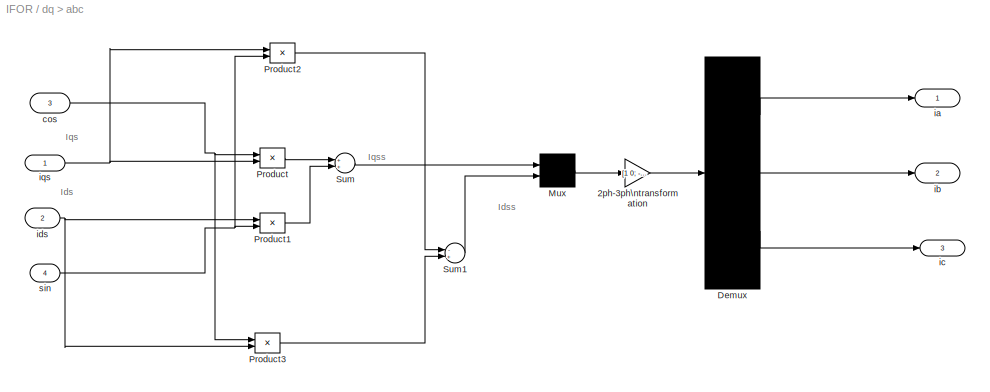
BLOCK [SubSystem] dq > abc
  FunctionWithSeparateData = off
  MaskHideContents = off
  MinAlgLoopOccurrences = off
  Opaque = off
  Ports = [4, 3]
  PropExecContextOutsideSubsystem = off
  RTWSystemCode = Auto
  RequestExecContextInheritance = off
BLOCK [Gain] dq > abc/2ph-3ph\ntransformation
  Gain = [1 0; -1/2 -sqrt(3)/2;  -1/2 sqrt(3)/2]
  Multiplication = Matrix(K*u)
  OutDataType = sfix(16)
  OutScaling = 2^0
  ParameterDataType = sfix(16)
  ParameterScaling = 2^0
BLOCK [Demux] dq > abc/Demux
  Outputs = 3
  Ports = [1, 3]
BLOCK [Mux] dq > abc/Mux
  Inputs = 2
  Ports = [2, 1]
BLOCK [Product] dq > abc/Product
  OutDataType = sfix(16)
  OutScaling = 2^0
  Ports = [2, 1]
  RndMeth = Floor
BLOCK [Product] dq > abc/Product1
  OutDataType = sfix(16)
  OutScaling = 2^0
  Ports = [2, 1]
  RndMeth = Floor
BLOCK [Product] dq > abc/Product2
  OutDataType = sfix(16)
  OutScaling = 2^0
  Ports = [2, 1]
  RndMeth = Floor
BLOCK [Product] dq > abc/Product3
  OutDataType = sfix(16)
  OutScaling = 2^0
  Ports = [2, 1]
  RndMeth = Floor
BLOCK [Sum] dq > abc/Sum
  OutDataType = sfix(16)
  OutScaling = 2^0
  Ports = [2, 1]
BLOCK [Sum] dq > abc/Sum1
  Inputs = -+
  OutDataType = sfix(16)
  OutScaling = 2^0
  Ports = [2, 1]
BLOCK [Inport] dq > abc/cos
  IconDisplay = Port number
  OutDataType = sfix(16)
  OutScaling = 2^0
  Port = 3
BLOCK [Outport] dq > abc/ia
  IconDisplay = Port number
  OutDataType = sfix(16)
  OutScaling = 2^0
BLOCK [Outport] dq > abc/ib
  IconDisplay = Port number
  OutDataType = sfix(16)
  OutScaling = 2^0
  Port = 2
BLOCK [Outport] dq > abc/ic
  IconDisplay = Port number
  OutDataType = sfix(16)
  OutScaling = 2^0
  Port = 3
BLOCK [Inport] dq > abc/ids
  IconDisplay = Port number
  OutDataType = sfix(16)
  OutScaling = 2^0
  Port = 2
BLOCK [Inport] dq > abc/iqs
  IconDisplay = Port number
  OutDataType = sfix(16)
  OutScaling = 2^0
BLOCK [Inport] dq > abc/sin
  IconDisplay = Port number
  OutDataType = sfix(16)
  OutScaling = 2^0
  Port = 4
BLOCK [Scope] ids,iqs
  DataFormat = Array
  Floating = off
  MaxDataPoints = 500000
  NumInputPorts = 1
  Ports = [1]
  SampleTime = 0
  SaveName = ScopeData8
  TickLabels = on
  TimeRange = 0.5
  YMax = 3
  YMin = -0.25
  ZoomMode = yonly
BLOCK [Scope] ids_
  DataFormat = Array
  Floating = off
  MaxDataPoints = 500000
  NumInputPorts = 1
  Ports = [1]
  SampleTime = 0
  SaveName = ScopeData17
  TickLabels = on
  TimeRange = 0.3
  YMax = 0.8300000000000001
  YMin = 0.65
  ZoomMode = yonly
BLOCK [SubSystem] iq Regler
  FunctionWithSeparateData = off
  MaskHideContents = off
  MinAlgLoopOccurrences = off
  Opaque = off
  Ports = [2, 1]
  PropExecContextOutsideSubsystem = off
  RTWSystemCode = Auto
  RequestExecContextInheritance = off
BLOCK [Gain] iq Regler/Gain3
  Gain = P2
  OutDataType = sfix(16)
  OutDataTypeMode = Inherit via internal rule
  OutDataTypeStr = Inherit: Inherit via internal rule
  OutScaling = 2^0
  ParamDataTypeStr = Inherit: Inherit via internal rule
  ParameterDataType = sfix(16)
  ParameterDataTypeMode = Inherit via internal rule
  ParameterScaling = 2^0
  SaturateOnIntegerOverflow = off
BLOCK [Gain] iq Regler/Gain4
  Gain = I2
  OutDataType = sfix(16)
  OutDataTypeMode = Inherit via internal rule
  OutDataTypeStr = Inherit: Inherit via internal rule
  OutScaling = 2^0
  ParamDataTypeStr = Inherit: Inherit via internal rule
  ParameterDataType = sfix(16)
  ParameterDataTypeMode = Inherit via internal rule
  ParameterScaling = 2^0
  SaturateOnIntegerOverflow = off
BLOCK [Integrator] iq Regler/Integrator1
  Ports = [1, 1]
BLOCK [Sum] iq Regler/Sum1
  IconShape = round
  InputSameDT = off
  Inputs = |++
  OutDataType = sfix(16)
  OutDataTypeMode = Inherit via internal rule
  OutDataTypeStr = Inherit: Inherit via internal rule
  OutScaling = 2^0
  Ports = [2, 1]
  SaturateOnIntegerOverflow = off
BLOCK [Sum] iq Regler/Sum2
  IconShape = round
  InputSameDT = off
  Inputs = |+-
  OutDataType = sfix(16)
  OutDataTypeMode = Inherit via internal rule
  OutDataTypeStr = Inherit: Inherit via internal rule
  OutScaling = 2^0
  Ports = [2, 1]
  SaturateOnIntegerOverflow = off
BLOCK [Scope] iq Regler/ia1
  DataFormat = Array
  Floating = off
  MaxDataPoints = 500000
  NumInputPorts = 1
  Ports = [1]
  SampleTime = 0
  SaveName = ScopeData22
  TickLabels = on
  YMax = 100
  YMin = -100
  ZoomMode = yonly
BLOCK [Scope] iq Regler/ia2
  DataFormat = Array
  Floating = off
  MaxDataPoints = 500000
  NumInputPorts = 1
  Ports = [1]
  SampleTime = 0
  SaveName = ScopeData23
  TickLabels = on
  YMax = 100
  YMin = -100
  ZoomMode = yonly
BLOCK [Scope] iq Regler/ia4
  DataFormat = Array
  Floating = off
  MaxDataPoints = 500000
  NumInputPorts = 1
  Ports = [1]
  SampleTime = 0
  SaveName = ScopeData7
  TickLabels = on
  YMax = 0.825
  YMin = 0.275
  ZoomMode = yonly
BLOCK [Inport] iq Regler/iqs
  IconDisplay = Port number
  OutDataType = sfix(16)
  OutScaling = 2^0
BLOCK [Outport] iq Regler/iqs*
  IconDisplay = Port number
  InitialOutput = 0
  OutDataType = sfix(16)
  OutScaling = 2^0
BLOCK [Inport] iq Regler/iqs_IST
  IconDisplay = Port number
  OutDataType = sfix(16)
  OutScaling = 2^0
  Port = 2
BLOCK [Scope] iqs_
  DataFormat = Array
  Floating = off
  MaxDataPoints = 500000
  NumInputPorts = 1
  Ports = [1]
  SampleTime = 0
  SaveName = ScopeData18
  TickLabels = on
  TimeRange = 0.3
  YMax = 3.8
  YMin = 3.15
  ZoomMode = xonly
BLOCK [Scope] iqs_2
  DataFormat = Array
  Floating = off
  MaxDataPoints = 500000
  NumInputPorts = 1
  Ports = [1]
  SampleTime = 0
  SaveName = ScopeData9
  TickLabels = on
  TimeRange = 0.3
  YMax = -0.1
  YMin = -1
  ZoomMode = xonly
BLOCK [Scope] vds_
  DataFormat = Array
  Floating = off
  MaxDataPoints = 500000
  NumInputPorts = 1
  Ports = [1]
  SampleTime = 0
  SaveName = ScopeData20
  TickLabels = on
  TimeRange = 0.3
  YMax = 150
  YMin = -150
  ZoomMode = xonly
BLOCK [Scope] vqs_
  DataFormat = Array
  Floating = off
  MaxDataPoints = 500000
  NumInputPorts = 1
  Ports = [1]
  SampleTime = 0
  SaveName = ScopeData19
  TickLabels = on
  TimeRange = 0.3
  YMax = 200
  YMin = -200
  ZoomMode = xonly
BLOCK [Scope] we
  DataFormat = Array
  Floating = off
  MaxDataPoints = 500000
  NumInputPorts = 1
  Ports = [1]
  SampleTime = 0
  SaveName = ScopeData3
  TickLabels = on
  YMax = 31.4301
  YMin = 31.4298
  ZoomMode = xonly
BLOCK [Scope] wsl
  DataFormat = Array
  Floating = off
  MaxDataPoints = 500000
  NumInputPorts = 1
  Ports = [1]
  SampleTime = 0
  SaveName = ScopeData21
  TickLabels = on
  TimeRange = 0.5
  YMax = 0.0325
  YMin = -0.0225
  ZoomMode = yonly
ANNOTATION (root): Drehmoment_
ANNOTATION (root): Frequenz des rotierenden\nKoordinatensystems
ANNOTATION (root): Schlupffrequenz
ANNOTATION (root): id Regler
ANNOTATION Flux Control: PI Stromregler Fluss
ANNOTATION dq > abc: Ids
ANNOTATION dq > abc: Idss
ANNOTATION dq > abc: Iqs
ANNOTATION dq > abc: Iqss
ANNOTATION iq Regler: PI Stromregler Drehmoment
LINE Asynchronmotormodell/Drehmomentberechnung/1.5*P//(2*wb):1 -> Asynchronmotormodell/Drehmomentberechnung/Te:1
LINE Asynchronmotormodell/Drehmomentberechnung/Add3:1 -> Asynchronmotormodell/Drehmomentberechnung/1.5*P//(2*wb):1
LINE Asynchronmotormodell/Drehmomentberechnung/Fds:1 -> Asynchronmotormodell/Drehmomentberechnung/Product2:1
LINE Asynchronmotormodell/Drehmomentberechnung/Fqs:1 -> Asynchronmotormodell/Drehmomentberechnung/Product1:2
LINE Asynchronmotormodell/Drehmomentberechnung/Product1:1 -> Asynchronmotormodell/Drehmomentberechnung/Add3:1
LINE Asynchronmotormodell/Drehmomentberechnung/Product2:1 -> Asynchronmotormodell/Drehmomentberechnung/Add3:2
LINE Asynchronmotormodell/Drehmomentberechnung/ids:1 -> Asynchronmotormodell/Drehmomentberechnung/Product1:1
LINE Asynchronmotormodell/Drehmomentberechnung/iqs:1 -> Asynchronmotormodell/Drehmomentberechnung/Product2:2
NET Asynchronmotormodell/Drehmomentberechnung:1 -> Asynchronmotormodell/Drehzahlberechnung:1, Asynchronmotormodell/Te:1
LINE Asynchronmotormodell/Drehzahlberechnung/Add3:1 -> Asynchronmotormodell/Drehzahlberechnung/P//(2*J):1
LINE Asynchronmotormodell/Drehzahlberechnung/Integrator:1 -> Asynchronmotormodell/Drehzahlberechnung/wr:1
LINE Asynchronmotormodell/Drehzahlberechnung/P//(2*J):1 -> Asynchronmotormodell/Drehzahlberechnung/Integrator:1
LINE Asynchronmotormodell/Drehzahlberechnung/Te:1 -> Asynchronmotormodell/Drehzahlberechnung/Add3:1
LINE Asynchronmotormodell/Drehzahlberechnung/Tl:1 -> Asynchronmotormodell/Drehzahlberechnung/Add3:2
NET Asynchronmotormodell/Drehzahlberechnung:1 -> Asynchronmotormodell/Flussberechnung:5, Asynchronmotormodell/Scope3:1, Asynchronmotormodell/wr:1
LINE Asynchronmotormodell/Flussberechnung/Fdr1/1//wb:1 -> Asynchronmotormodell/Flussberechnung/Fdr1/Product:1
LINE Asynchronmotormodell/Flussberechnung/Fdr1/Add1:1 -> Asynchronmotormodell/Flussberechnung/Fdr1/Rr//Xlr:1
LINE Asynchronmotormodell/Flussberechnung/Fdr1/Add2:1 -> Asynchronmotormodell/Flussberechnung/Fdr1/1//wb:1
LINE Asynchronmotormodell/Flussberechnung/Fdr1/Add3:1 -> Asynchronmotormodell/Flussberechnung/Fdr1/wb:1
LINE Asynchronmotormodell/Flussberechnung/Fdr1/Fmd:1 -> Asynchronmotormodell/Flussberechnung/Fdr1/Add1:1
LINE Asynchronmotormodell/Flussberechnung/Fdr1/Fqr:1 -> Asynchronmotormodell/Flussberechnung/Fdr1/Product:2
NET Asynchronmotormodell/Flussberechnung/Fdr1/Integrator:1 -> Asynchronmotormodell/Flussberechnung/Fdr1/Add1:2, Asynchronmotormodell/Flussberechnung/Fdr1/Fdr:1
LINE Asynchronmotormodell/Flussberechnung/Fdr1/Product:1 -> Asynchronmotormodell/Flussberechnung/Fdr1/Add3:1
LINE Asynchronmotormodell/Flussberechnung/Fdr1/Rr//Xlr:1 -> Asynchronmotormodell/Flussberechnung/Fdr1/Add3:2
LINE Asynchronmotormodell/Flussberechnung/Fdr1/wb:1 -> Asynchronmotormodell/Flussberechnung/Fdr1/Integrator:1
LINE Asynchronmotormodell/Flussberechnung/Fdr1/we:1 -> Asynchronmotormodell/Flussberechnung/Fdr1/Add2:1
LINE Asynchronmotormodell/Flussberechnung/Fdr1/wr:1 -> Asynchronmotormodell/Flussberechnung/Fdr1/Add2:2
NET Asynchronmotormodell/Flussberechnung/Fdr1:1 -> Asynchronmotormodell/Flussberechnung/Fdr:1, Asynchronmotormodell/Flussberechnung/Fqr1:2
LINE Asynchronmotormodell/Flussberechnung/Fds1/1//wb:1 -> Asynchronmotormodell/Flussberechnung/Fds1/Product:1
LINE Asynchronmotormodell/Flussberechnung/Fds1/Add1:1 -> Asynchronmotormodell/Flussberechnung/Fds1/wb:1
LINE Asynchronmotormodell/Flussberechnung/Fds1/Add2:1 -> Asynchronmotormodell/Flussberechnung/Fds1/Rs//Xls:1
LINE Asynchronmotormodell/Flussberechnung/Fds1/Fmd:1 -> Asynchronmotormodell/Flussberechnung/Fds1/Add2:1
LINE Asynchronmotormodell/Flussberechnung/Fds1/Fqs:1 -> Asynchronmotormodell/Flussberechnung/Fds1/Product:2
NET Asynchronmotormodell/Flussberechnung/Fds1/Integrator:1 -> Asynchronmotormodell/Flussberechnung/Fds1/Add2:2, Asynchronmotormodell/Flussberechnung/Fds1/Fds:1
LINE Asynchronmotormodell/Flussberechnung/Fds1/Product:1 -> Asynchronmotormodell/Flussberechnung/Fds1/Add1:2
LINE Asynchronmotormodell/Flussberechnung/Fds1/Rs//Xls:1 -> Asynchronmotormodell/Flussberechnung/Fds1/Add1:3
LINE Asynchronmotormodell/Flussberechnung/Fds1/Vds:1 -> Asynchronmotormodell/Flussberechnung/Fds1/Add1:1
LINE Asynchronmotormodell/Flussberechnung/Fds1/wb:1 -> Asynchronmotormodell/Flussberechnung/Fds1/Integrator:1
LINE Asynchronmotormodell/Flussberechnung/Fds1/we:1 -> Asynchronmotormodell/Flussberechnung/Fds1/1//wb:1
NET Asynchronmotormodell/Flussberechnung/Fds1:1 -> Asynchronmotormodell/Flussberechnung/Fds:1, Asynchronmotormodell/Flussberechnung/Fqs1:1
NET Asynchronmotormodell/Flussberechnung/Fmd:1 -> Asynchronmotormodell/Flussberechnung/Fdr1:3, Asynchronmotormodell/Flussberechnung/Fds1:3
NET Asynchronmotormodell/Flussberechnung/Fmq:1 -> Asynchronmotormodell/Flussberechnung/Fqr1:3, Asynchronmotormodell/Flussberechnung/Fqs1:3
LINE Asynchronmotormodell/Flussberechnung/Fqr1/1//wb:1 -> Asynchronmotormodell/Flussberechnung/Fqr1/Product:1
LINE Asynchronmotormodell/Flussberechnung/Fqr1/Add1:1 -> Asynchronmotormodell/Flussberechnung/Fqr1/wb:1
LINE Asynchronmotormodell/Flussberechnung/Fqr1/Add2:1 -> Asynchronmotormodell/Flussberechnung/Fqr1/Rr//Xlr:1
LINE Asynchronmotormodell/Flussberechnung/Fqr1/Add:1 -> Asynchronmotormodell/Flussberechnung/Fqr1/1//wb:1
LINE Asynchronmotormodell/Flussberechnung/Fqr1/Fdr:1 -> Asynchronmotormodell/Flussberechnung/Fqr1/Product:2
LINE Asynchronmotormodell/Flussberechnung/Fqr1/Fmq:1 -> Asynchronmotormodell/Flussberechnung/Fqr1/Add2:1
NET Asynchronmotormodell/Flussberechnung/Fqr1/Integrator:1 -> Asynchronmotormodell/Flussberechnung/Fqr1/Add2:2, Asynchronmotormodell/Flussberechnung/Fqr1/Fqr:1
LINE Asynchronmotormodell/Flussberechnung/Fqr1/Product:1 -> Asynchronmotormodell/Flussberechnung/Fqr1/Add1:1
LINE Asynchronmotormodell/Flussberechnung/Fqr1/Rr//Xlr:1 -> Asynchronmotormodell/Flussberechnung/Fqr1/Add1:2
LINE Asynchronmotormodell/Flussberechnung/Fqr1/wb:1 -> Asynchronmotormodell/Flussberechnung/Fqr1/Integrator:1
LINE Asynchronmotormodell/Flussberechnung/Fqr1/we:1 -> Asynchronmotormodell/Flussberechnung/Fqr1/Add:1
LINE Asynchronmotormodell/Flussberechnung/Fqr1/wr:1 -> Asynchronmotormodell/Flussberechnung/Fqr1/Add:2
NET Asynchronmotormodell/Flussberechnung/Fqr1:1 -> Asynchronmotormodell/Flussberechnung/Fdr1:2, Asynchronmotormodell/Flussberechnung/Fqr:1
LINE Asynchronmotormodell/Flussberechnung/Fqs1/1//wb:1 -> Asynchronmotormodell/Flussberechnung/Fqs1/Product:1
LINE Asynchronmotormodell/Flussberechnung/Fqs1/Add1:1 -> Asynchronmotormodell/Flussberechnung/Fqs1/wb:1
LINE Asynchronmotormodell/Flussberechnung/Fqs1/Add2:1 -> Asynchronmotormodell/Flussberechnung/Fqs1/Rs//Xls:1
LINE Asynchronmotormodell/Flussberechnung/Fqs1/Fds:1 -> Asynchronmotormodell/Flussberechnung/Fqs1/Product:2
LINE Asynchronmotormodell/Flussberechnung/Fqs1/Fmq:1 -> Asynchronmotormodell/Flussberechnung/Fqs1/Add2:1
NET Asynchronmotormodell/Flussberechnung/Fqs1/Integrator:1 -> Asynchronmotormodell/Flussberechnung/Fqs1/Add2:2, Asynchronmotormodell/Flussberechnung/Fqs1/Fqs:1
LINE Asynchronmotormodell/Flussberechnung/Fqs1/Product:1 -> Asynchronmotormodell/Flussberechnung/Fqs1/Add1:2
LINE Asynchronmotormodell/Flussberechnung/Fqs1/Rs//Xls:1 -> Asynchronmotormodell/Flussberechnung/Fqs1/Add1:3
LINE Asynchronmotormodell/Flussberechnung/Fqs1/Vqs:1 -> Asynchronmotormodell/Flussberechnung/Fqs1/Add1:1
LINE Asynchronmotormodell/Flussberechnung/Fqs1/wb:1 -> Asynchronmotormodell/Flussberechnung/Fqs1/Integrator:1
LINE Asynchronmotormodell/Flussberechnung/Fqs1/we:1 -> Asynchronmotormodell/Flussberechnung/Fqs1/1//wb:1
NET Asynchronmotormodell/Flussberechnung/Fqs1:1 -> Asynchronmotormodell/Flussberechnung/Fds1:1, Asynchronmotormodell/Flussberechnung/Fqs:1
LINE Asynchronmotormodell/Flussberechnung/Uds:1 -> Asynchronmotormodell/Flussberechnung/Fds1:2
LINE Asynchronmotormodell/Flussberechnung/Uqs:1 -> Asynchronmotormodell/Flussberechnung/Fqs1:2
NET Asynchronmotormodell/Flussberechnung/we:1 -> Asynchronmotormodell/Flussberechnung/Fdr1:4, Asynchronmotormodell/Flussberechnung/Fds1:4, Asynchronmotormodell/Flussberechnung/Fqr1:4, Asynchronmotormodell/Flussberechnung/Fqs1:4
NET Asynchronmotormodell/Flussberechnung/wr:1 -> Asynchronmotormodell/Flussberechnung/Fdr1:1, Asynchronmotormodell/Flussberechnung/Fqr1:1
NET Asynchronmotormodell/Flussberechnung:1 -> Asynchronmotormodell/Scope1:1, Asynchronmotormodell/Subsystem4:2, Asynchronmotormodell/To Workspace4:1
NET Asynchronmotormodell/Flussberechnung:2 -> Asynchronmotormodell/Drehmomentberechnung:2, Asynchronmotormodell/Subsystem4:1, Asynchronmotormodell/To Workspace3:1
NET Asynchronmotormodell/Flussberechnung:3 -> Asynchronmotormodell/Drehmomentberechnung:3, Asynchronmotormodell/Subsystem1:1, Asynchronmotormodell/To Workspace2:1
NET Asynchronmotormodell/Flussberechnung:4 -> Asynchronmotormodell/Scope2:1, Asynchronmotormodell/Subsystem1:2, Asynchronmotormodell/To Workspace7:1
NET Asynchronmotormodell/Subsystem1/1//((1//Xm)+(1//Xls)+(1//Xlr))1:1 -> Asynchronmotormodell/Subsystem1/Add3:2, Asynchronmotormodell/Subsystem1/Add4:2, Asynchronmotormodell/Subsystem1/Fmd:1
LINE Asynchronmotormodell/Subsystem1/1//Xlr1:1 -> Asynchronmotormodell/Subsystem1/Add1:2
LINE Asynchronmotormodell/Subsystem1/1//Xlr2:1 -> Asynchronmotormodell/Subsystem1/idr:1
LINE Asynchronmotormodell/Subsystem1/1//Xls1:1 -> Asynchronmotormodell/Subsystem1/Add1:1
LINE Asynchronmotormodell/Subsystem1/1//Xls2:1 -> Asynchronmotormodell/Subsystem1/ids:1
LINE Asynchronmotormodell/Subsystem1/Add1:1 -> Asynchronmotormodell/Subsystem1/1//((1//Xm)+(1//Xls)+(1//Xlr))1:1
LINE Asynchronmotormodell/Subsystem1/Add3:1 -> Asynchronmotormodell/Subsystem1/1//Xls2:1
LINE Asynchronmotormodell/Subsystem1/Add4:1 -> Asynchronmotormodell/Subsystem1/1//Xlr2:1
NET Asynchronmotormodell/Subsystem1/Fdr:1 -> Asynchronmotormodell/Subsystem1/1//Xlr1:1, Asynchronmotormodell/Subsystem1/Add4:1
NET Asynchronmotormodell/Subsystem1/Fds:1 -> Asynchronmotormodell/Subsystem1/1//Xls1:1, Asynchronmotormodell/Subsystem1/Add3:1
NET Asynchronmotormodell/Subsystem1:1 -> Asynchronmotormodell/Flussberechnung:4, Asynchronmotormodell/To Workspace6:1
NET Asynchronmotormodell/Subsystem1:2 -> Asynchronmotormodell/Drehmomentberechnung:1, Asynchronmotormodell/Scope5:1, Asynchronmotormodell/To Workspace:1, Asynchronmotormodell/ids:1
NET Asynchronmotormodell/Subsystem1:3 -> Asynchronmotormodell/Scope7:1, Asynchronmotormodell/To Workspace9:1
NET Asynchronmotormodell/Subsystem4/1//((1//Xm)+(1//Xls)+(1//Xlr)):1 -> Asynchronmotormodell/Subsystem4/Add1:2, Asynchronmotormodell/Subsystem4/Add2:2, Asynchronmotormodell/Subsystem4/Fmq:1
LINE Asynchronmotormodell/Subsystem4/1//Xlr1:1 -> Asynchronmotormodell/Subsystem4/iqr:1
LINE Asynchronmotormodell/Subsystem4/1//Xlr:1 -> Asynchronmotormodell/Subsystem4/Add3:2
LINE Asynchronmotormodell/Subsystem4/1//Xls1:1 -> Asynchronmotormodell/Subsystem4/iqs:1
LINE Asynchronmotormodell/Subsystem4/1//Xls:1 -> Asynchronmotormodell/Subsystem4/Add3:1
LINE Asynchronmotormodell/Subsystem4/Add1:1 -> Asynchronmotormodell/Subsystem4/1//Xlr1:1
LINE Asynchronmotormodell/Subsystem4/Add2:1 -> Asynchronmotormodell/Subsystem4/1//Xls1:1
LINE Asynchronmotormodell/Subsystem4/Add3:1 -> Asynchronmotormodell/Subsystem4/1//((1//Xm)+(1//Xls)+(1//Xlr)):1
NET Asynchronmotormodell/Subsystem4/Fqr:1 -> Asynchronmotormodell/Subsystem4/1//Xlr:1, Asynchronmotormodell/Subsystem4/Add1:1
NET Asynchronmotormodell/Subsystem4/Fqs:1 -> Asynchronmotormodell/Subsystem4/1//Xls:1, Asynchronmotormodell/Subsystem4/Add2:1
NET Asynchronmotormodell/Subsystem4:1 -> Asynchronmotormodell/Flussberechnung:3, Asynchronmotormodell/To Workspace5:1
NET Asynchronmotormodell/Subsystem4:2 -> Asynchronmotormodell/Scope6:1, Asynchronmotormodell/To Workspace8:1
NET Asynchronmotormodell/Subsystem4:3 -> Asynchronmotormodell/Drehmomentberechnung:4, Asynchronmotormodell/To Workspace1:1, Asynchronmotormodell/iqs:1
LINE Asynchronmotormodell/Tl:1 -> Asynchronmotormodell/Drehzahlberechnung:2
LINE Asynchronmotormodell/Uds:1 -> Asynchronmotormodell/Flussberechnung:2
LINE Asynchronmotormodell/Uqs:1 -> Asynchronmotormodell/Flussberechnung:1
LINE Asynchronmotormodell/we:1 -> Asynchronmotormodell/Flussberechnung:6
NET Asynchronmotormodell:1 -> Drehzahl Regler:2, Flux Control2:1, Mux7:2
LINE Asynchronmotormodell:2 -> Mux5:2
NET Asynchronmotormodell:3 -> Flux Control:2, dq > abc:2, ids_:1
NET Asynchronmotormodell:4 -> dq > abc:1, iq Regler:2, iqs_:1
LINE Drehmoment/Step2:1 -> Drehmoment/Sum1:1
LINE Drehmoment/Step3:1 -> Drehmoment/Sum1:2
LINE Drehmoment/Step4:1 -> Drehmoment/Sum1:3
LINE Drehmoment/Sum1:1 -> Drehmoment/Tl:1
NET Drehmoment:1 -> Asynchronmotormodell:1, Mux5:1
LINE Drehzahl Regler/Gain1:1 -> Drehzahl Regler/Sum4:1
LINE Drehzahl Regler/Gain2:1 -> Drehzahl Regler/Integrator:1
LINE Drehzahl Regler/Integrator:1 -> Drehzahl Regler/Sum4:2
NET Drehzahl Regler/Sum4:1 -> Drehzahl Regler/ia4:1, Drehzahl Regler/iqs:1
NET Drehzahl Regler/Sum5:1 -> Drehzahl Regler/Gain1:1, Drehzahl Regler/Gain2:1
LINE Drehzahl Regler/wr*:1 -> Drehzahl Regler/Sum5:1
LINE Drehzahl Regler/wr_IST:1 -> Drehzahl Regler/Sum5:2
NET Drehzahl Regler:1 -> Flux Control1:1, iq Regler:1, iqs_2:1
LINE Drehzahl/Repeating\nSequence1:1 -> Drehzahl/wr*:1
NET Drehzahl:1 -> Drehzahl Regler:1, Mux7:1
LINE Flux Control/Gain5:1 -> Flux Control/Sum3:1
LINE Flux Control/Gain6:1 -> Flux Control/Integrator2:1
LINE Flux Control/Integrator2:1 -> Flux Control/Sum3:2
NET Flux Control/Sum3:1 -> Flux Control/ia3:1, Flux Control/ia4:1, Flux Control/ids*:1
NET Flux Control/Sum6:1 -> Flux Control/Gain5:1, Flux Control/Gain6:1
NET Flux Control/ids:1 -> Flux Control/Sum6:1, Flux Control/ia1:1
NET Flux Control/ids_IST:1 -> Flux Control/Sum6:2, Flux Control/ia2:1
LINE Flux Control1/Flux:1 -> Flux Control1/Product:2
LINE Flux Control1/Gain:1 -> Flux Control1/Product:1
LINE Flux Control1/Product:1 -> Flux Control1/wsl:1
LINE Flux Control1/iqs:1 -> Flux Control1/Gain:1
NET Flux Control1:1 -> Flux Control2:2, wsl:1
LINE Flux Control2/Estimator1/Constant:1 -> Flux Control2/Estimator1/Math\nFunction3:2
LINE Flux Control2/Estimator1/Integrator:1 -> Flux Control2/Estimator1/Math\nFunction3:1
LINE Flux Control2/Estimator1/Math\nFunction3:1 -> Flux Control2/Estimator1/theta-e:1
LINE Flux Control2/Estimator1/we:1 -> Flux Control2/Estimator1/Integrator:1
NET Flux Control2/Estimator1:1 -> Flux Control2/unit vectors:1, Flux Control2/winkel e:1
LINE Flux Control2/Estimator2/Constant:1 -> Flux Control2/Estimator2/Math\nFunction3:2
LINE Flux Control2/Estimator2/Integrator:1 -> Flux Control2/Estimator2/Math\nFunction3:1
LINE Flux Control2/Estimator2/Math\nFunction3:1 -> Flux Control2/Estimator2/theta-e:1
LINE Flux Control2/Estimator2/wsl:1 -> Flux Control2/Estimator2/Integrator:1
LINE Flux Control2/Estimator2:1 -> Flux Control2/winkel sl:1
LINE Flux Control2/Estimator3/Constant:1 -> Flux Control2/Estimator3/Math\nFunction3:2
LINE Flux Control2/Estimator3/Integrator:1 -> Flux Control2/Estimator3/Math\nFunction3:1
LINE Flux Control2/Estimator3/Math\nFunction3:1 -> Flux Control2/Estimator3/theta-e:1
LINE Flux Control2/Estimator3/wr:1 -> Flux Control2/Estimator3/Integrator:1
LINE Flux Control2/Estimator3:1 -> Flux Control2/winkel r:1
NET Flux Control2/Sum2:1 -> Flux Control2/Estimator1:1, Flux Control2/we:1
LINE Flux Control2/unit vectors/Trigonometric\nFunction1:1 -> Flux Control2/unit vectors/cos(theta-e):1
LINE Flux Control2/unit vectors/Trigonometric\nFunction:1 -> Flux Control2/unit vectors/sin(theta-e):1
NET Flux Control2/unit vectors/theta-e:1 -> Flux Control2/unit vectors/Trigonometric\nFunction1:1, Flux Control2/unit vectors/Trigonometric\nFunction:1
LINE Flux Control2/unit vectors:1 -> Flux Control2/cos:1
LINE Flux Control2/unit vectors:2 -> Flux Control2/sin:1
NET Flux Control2/wr:1 -> Flux Control2/Estimator3:1, Flux Control2/Sum2:1, Flux Control2/wr1:1
NET Flux Control2/wsl:1 -> Flux Control2/Estimator2:1, Flux Control2/Sum2:2, Flux Control2/wsl1:1
LINE Flux Control2:1 -> dq > abc:3
LINE Flux Control2:2 -> dq > abc:4
NET Flux Control2:3 -> Asynchronmotormodell:2, we:1
NET Flux Control:1 -> Mux1:2, PWM Inverter:1
LINE Gleichspannungsversorgung/Constant4:1 -> Gleichspannungsversorgung/0:1
LINE Gleichspannungsversorgung/Constant5:1 -> Gleichspannungsversorgung/Ud:1
LINE Gleichspannungsversorgung:1 -> PWM Inverter:3
LINE Gleichspannungsversorgung:2 -> PWM Inverter:4
LINE Lm:1 -> Flux Control1:2
NET Magnetisierungstrom:1 -> Flux Control:1, Lm:1
LINE Mux1:1 -> ids,iqs:1
NET Mux5:1 -> Drehmoment1:1, To Workspace2:1
NET Mux6:1 -> Ströme_:1, To Workspace1:1
NET Mux7:1 -> Drehzahl_:1, To Workspace3:1
NET PWM Inverter/0:1 -> PWM Inverter/Switch1:3, PWM Inverter/Switch:3
LINE PWM Inverter/Relational\nOperator1:1 -> PWM Inverter/Switch1:2
NET PWM Inverter/Relational\nOperator:1 -> PWM Inverter/Switch:2, PWM Inverter/ids Vergleicher:1
LINE PWM Inverter/Switch1:1 -> PWM Inverter/Uqs:1
NET PWM Inverter/Switch:1 -> PWM Inverter/Uds:1, PWM Inverter/vao hinter Vergleicher1:1
NET PWM Inverter/Ud:1 -> PWM Inverter/Switch1:1, PWM Inverter/Switch:1
NET PWM Inverter/ids*:1 -> PWM Inverter/Relational\nOperator:2, PWM Inverter/ids1:1
LINE PWM Inverter/iqs*:1 -> PWM Inverter/Relational\nOperator1:2
NET PWM Inverter/vref2:1 -> PWM Inverter/Relational\nOperator1:1, PWM Inverter/Relational\nOperator:1, PWM Inverter/ref:1
NET PWM Inverter:1 -> Asynchronmotormodell:4, vds_:1
NET PWM Inverter:2 -> Asynchronmotormodell:3, vqs_:1
LINE dq > abc/2ph-3ph\ntransformation:1 -> dq > abc/Demux:1
LINE dq > abc/Demux:1 -> dq > abc/ia:1
LINE dq > abc/Demux:2 -> dq > abc/ib:1
LINE dq > abc/Demux:3 -> dq > abc/ic:1
LINE dq > abc/Mux:1 -> dq > abc/2ph-3ph\ntransformation:1
LINE dq > abc/Product1:1 -> dq > abc/Sum:2
LINE dq > abc/Product2:1 -> dq > abc/Sum1:1
LINE dq > abc/Product3:1 -> dq > abc/Sum1:2
LINE dq > abc/Product:1 -> dq > abc/Sum:1
LINE dq > abc/Sum1:1 -> dq > abc/Mux:2
LINE dq > abc/Sum:1 -> dq > abc/Mux:1
NET dq > abc/cos:1 -> dq > abc/Product3:1, dq > abc/Product:1
NET dq > abc/ids:1 -> dq > abc/Product1:1, dq > abc/Product3:2
NET dq > abc/iqs:1 -> dq > abc/Product2:1, dq > abc/Product:2
NET dq > abc/sin:1 -> dq > abc/Product1:2, dq > abc/Product2:2
LINE dq > abc:1 -> Mux6:1
LINE dq > abc:2 -> Mux6:2
LINE dq > abc:3 -> Mux6:3
LINE iq Regler/Gain3:1 -> iq Regler/Sum1:1
LINE iq Regler/Gain4:1 -> iq Regler/Integrator1:1
LINE iq Regler/Integrator1:1 -> iq Regler/Sum1:2
NET iq Regler/Sum1:1 -> iq Regler/ia1:1, iq Regler/ia4:1, iq Regler/iqs*:1
NET iq Regler/Sum2:1 -> iq Regler/Gain3:1, iq Regler/Gain4:1
LINE iq Regler/iqs:1 -> iq Regler/Sum2:1
NET iq Regler/iqs_IST:1 -> iq Regler/Sum2:2, iq Regler/ia2:1
NET iq Regler:1 -> Mux1:1, PWM Inverter:2
note: NET lines group one-source signal fan-out (src -> all destinations, sorted); 1:1 wires keep LINE
